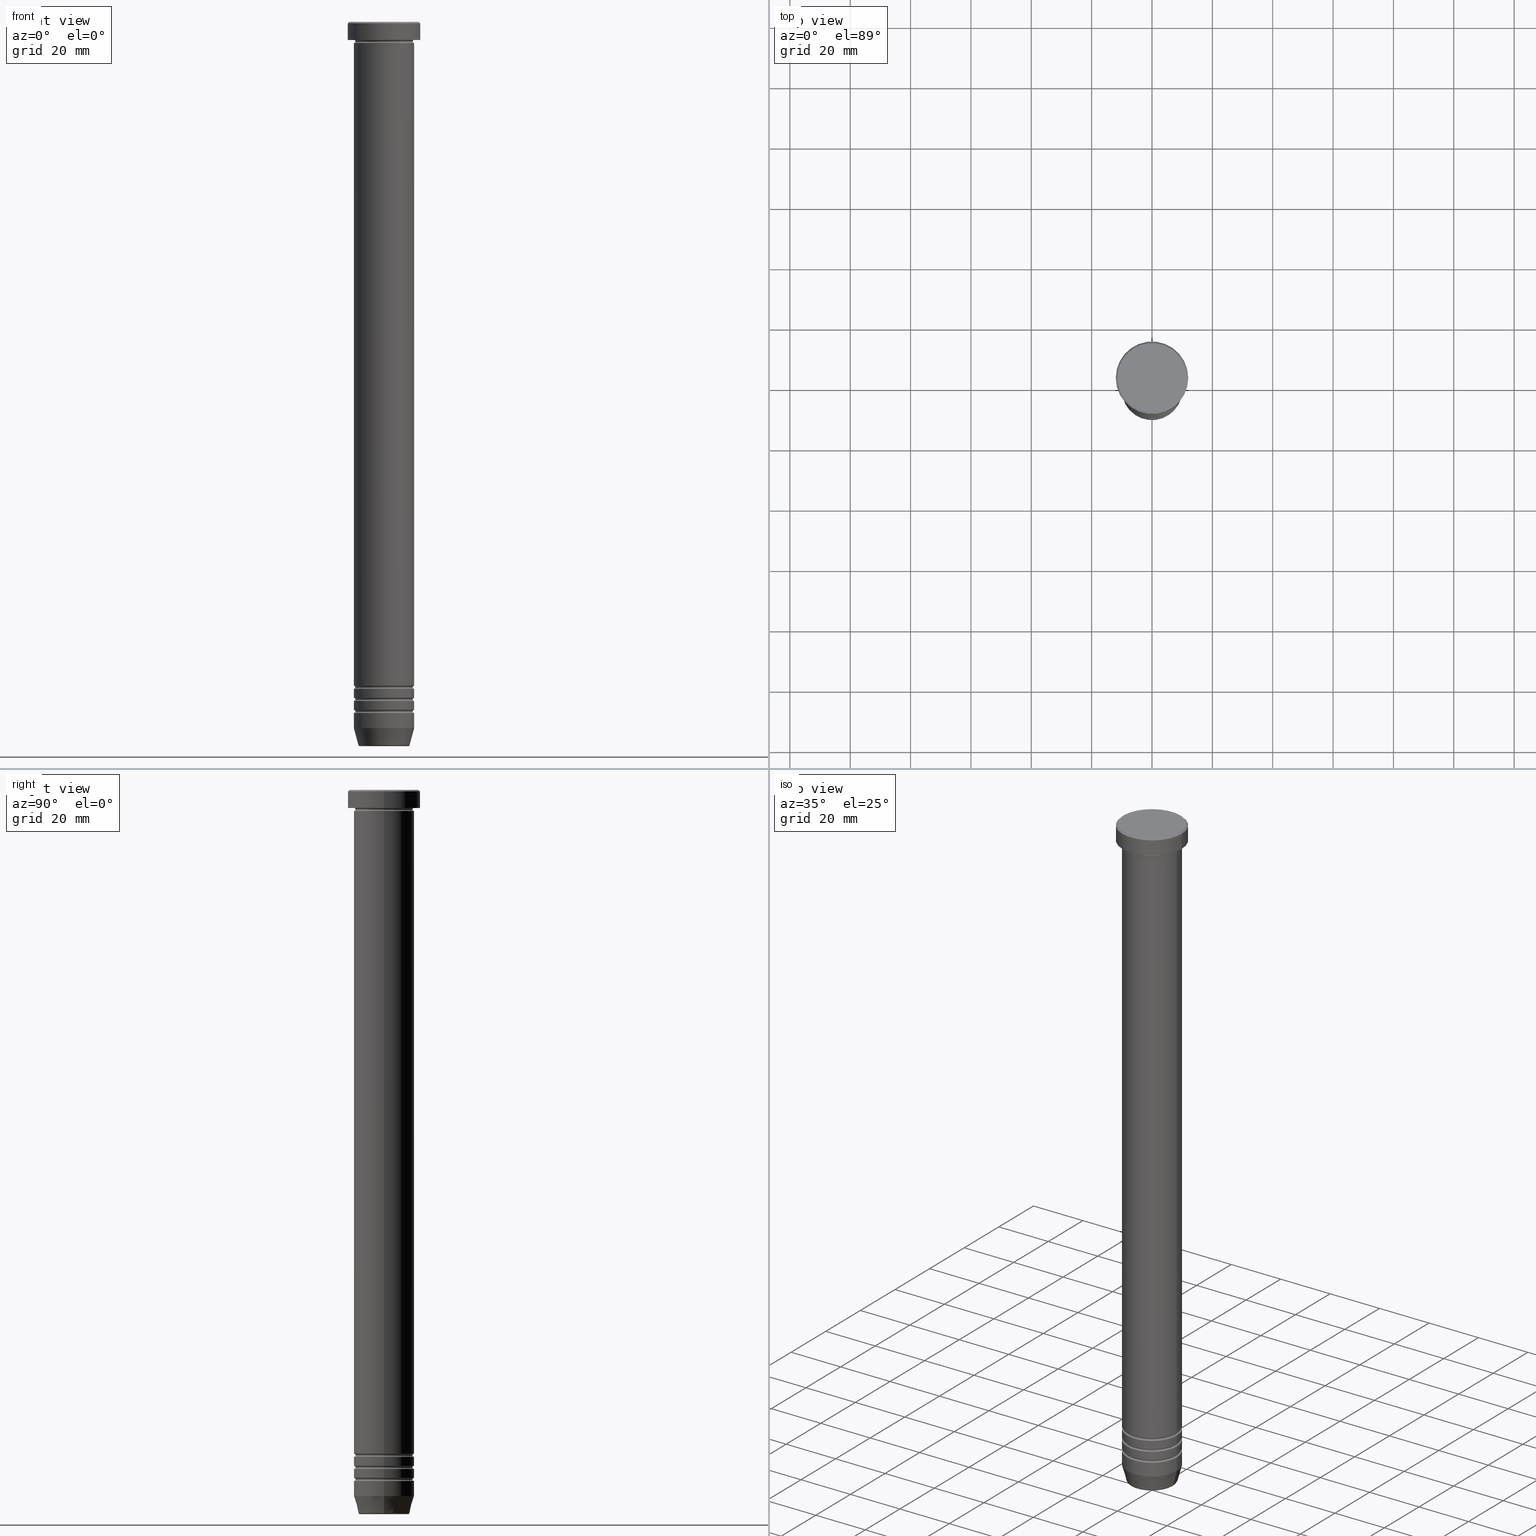
[diagram: canonical four-view strip — front | top / right | iso, engineering-drawing reading convention]
A machine part, canonical four-view strip (front | top / right | iso — engineering-drawing reading convention). The complete STEP part file that produces these views, byte-faithful:
ISO-10303-21;
HEADER;
FILE_DESCRIPTION (( 'STEP AP203' ),
    '1' );
FILE_NAME ('fb29.STEP',
    '2024-01-02T21:46:36',
    ( '' ),
    ( '' ),
    'SwSTEP 2.0',
    'SolidWorks 2019',
    '' );
FILE_SCHEMA (( 'CONFIG_CONTROL_DESIGN' ));
ENDSEC;

DATA;
#1 = COORDINATED_UNIVERSAL_TIME_OFFSET ( 1, 0, .AHEAD. ) ;
#2 = ORIENTED_EDGE ( 'NONE', *, *, #812, .T. ) ;
#3 = DIRECTION ( 'NONE',  ( 1.000000000000000000, 0.000000000000000000, 0.000000000000000000 ) ) ;
#4 = DIRECTION ( 'NONE',  ( 1.224646799147353207E-16, 1.000000000000000000, 0.000000000000000000 ) ) ;
#5 = EDGE_LOOP ( 'NONE', ( #937, #102, #133, #692 ) ) ;
#6 = APPROVAL_ROLE ( '' ) ;
#7 = CARTESIAN_POINT ( 'NONE',  ( 0.000000000000000000, 0.000000000000000000, -0.4999999999999987232 ) ) ;
#8 = CARTESIAN_POINT ( 'NONE',  ( 0.000000000000000000, 0.000000000000000000, -228.5000000000000284 ) ) ;
#9 = AXIS2_PLACEMENT_3D ( 'NONE', #501, #163, #581 ) ;
#10 = ORIENTED_EDGE ( 'NONE', *, *, #909, .T. ) ;
#11 = CIRCLE ( 'NONE', #994, 9.499999999999994671 ) ;
#12 = APPROVAL_PERSON_ORGANIZATION ( #403, #502, #6 ) ;
#13 = DIRECTION ( 'NONE',  ( -0.000000000000000000, -0.000000000000000000, 1.000000000000000000 ) ) ;
#14 = EDGE_CURVE ( 'NONE', #906, #1048, #261, .T. ) ;
#15 = DESIGN_CONTEXT ( 'detailed design', #100, 'design' ) ;
#16 = VERTEX_POINT ( 'NONE', #115 ) ;
#17 = AXIS2_PLACEMENT_3D ( 'NONE', #80, #323, #1000 ) ;
#18 = CYLINDRICAL_SURFACE ( 'NONE', #203, 9.999999999999996447 ) ;
#19 = DIRECTION ( 'NONE',  ( 0.000000000000000000, 0.000000000000000000, -1.000000000000000000 ) ) ;
#20 = FACE_OUTER_BOUND ( 'NONE', #1001, .T. ) ;
#21 = DIRECTION ( 'NONE',  ( -0.000000000000000000, -0.000000000000000000, 1.000000000000000000 ) ) ;
#22 = LINE ( 'NONE', #207, #146 ) ;
#23 = CARTESIAN_POINT ( 'NONE',  ( 0.000000000000000000, 0.000000000000000000, 0.000000000000000000 ) ) ;
#24 = TOROIDAL_SURFACE ( 'NONE', #304, 9.999999999999994671, 0.5000000000000000000 ) ;
#25 = CONICAL_SURFACE ( 'NONE', #288, 8.392304845413249836, 0.2617993877991502960 ) ;
#26 = CARTESIAN_POINT ( 'NONE',  ( 0.000000000000000000, 10.00000000000000000, -50.00000000000000000 ) ) ;
#27 = DIRECTION ( 'NONE',  ( 1.000000000000000000, 0.000000000000000000, 0.000000000000000000 ) ) ;
#28 = EDGE_LOOP ( 'NONE', ( #699, #743, #780, #925 ) ) ;
#29 = CARTESIAN_POINT ( 'NONE',  ( -10.00000000000000000, 1.224646799147353256E-15, -234.0000000000000000 ) ) ;
#30 = EDGE_CURVE ( 'NONE', #727, #1048, #67, .T. ) ;
#31 = CYLINDRICAL_SURFACE ( 'NONE', #220, 10.00000000000000000 ) ;
#32 = FACE_OUTER_BOUND ( 'NONE', #914, .T. ) ;
#33 = ORIENTED_EDGE ( 'NONE', *, *, #651, .F. ) ;
#34 = CARTESIAN_POINT ( 'NONE',  ( 9.999999999999996447, 0.000000000000000000, 0.000000000000000000 ) ) ;
#35 = ADVANCED_FACE ( 'NONE', ( #595 ), #760, .F. ) ;
#36 = DIRECTION ( 'NONE',  ( -1.224646799147353207E-16, 1.000000000000000000, 0.000000000000000000 ) ) ;
#37 = CIRCLE ( 'NONE', #660, 9.500000000000000000 ) ;
#38 = AXIS2_PLACEMENT_3D ( 'NONE', #608, #766, #94 ) ;
#39 = EDGE_LOOP ( 'NONE', ( #152, #475, #425, #228 ) ) ;
#40 = COORDINATED_UNIVERSAL_TIME_OFFSET ( 1, 0, .AHEAD. ) ;
#41 = DIRECTION ( 'NONE',  ( 1.000000000000000000, 0.000000000000000000, 0.000000000000000000 ) ) ;
#42 = DIRECTION ( 'NONE',  ( -1.224646799147353207E-16, 1.000000000000000000, 0.000000000000000000 ) ) ;
#43 = ORIENTED_EDGE ( 'NONE', *, *, #849, .T. ) ;
#44 = PERSON_AND_ORGANIZATION ( #284, #406 ) ;
#45 = MANIFOLD_SOLID_BREP ( 'Zkosen�1', #585 ) ;
#46 = DIRECTION ( 'NONE',  ( -1.000000000000000000, 0.000000000000000000, 0.000000000000000000 ) ) ;
#47 = CONICAL_SURFACE ( 'NONE', #652, 11.50000000000000888, 0.7853981633974412846 ) ;
#48 = FACE_OUTER_BOUND ( 'NONE', #907, .T. ) ;
#49 = DIRECTION ( 'NONE',  ( -1.000000000000000000, 0.000000000000000000, 0.000000000000000000 ) ) ;
#50 = CC_DESIGN_PERSON_AND_ORGANIZATION_ASSIGNMENT ( #1023, #533, ( #72 ) ) ;
#51 = CARTESIAN_POINT ( 'NONE',  ( -9.500000000000000000, 1.194030629168669469E-15, -6.499999999999999112 ) ) ;
#52 = EDGE_CURVE ( 'NONE', #175, #59, #792, .T. ) ;
#53 = AXIS2_PLACEMENT_3D ( 'NONE', #616, #462, #783 ) ;
#54 = ORIENTED_EDGE ( 'NONE', *, *, #229, .F. ) ;
#55 = FACE_OUTER_BOUND ( 'NONE', #127, .T. ) ;
#56 = TOROIDAL_SURFACE ( 'NONE', #959, 10.00000000000000000, 0.5000000000000000000 ) ;
#57 = FACE_OUTER_BOUND ( 'NONE', #210, .T. ) ;
#58 = ORIENTED_EDGE ( 'NONE', *, *, #396, .F. ) ;
#59 = VERTEX_POINT ( 'NONE', #931 ) ;
#60 = VERTEX_POINT ( 'NONE', #279 ) ;
#61 = ADVANCED_FACE ( 'NONE', ( #198 ), #951, .F. ) ;
#62 = DIRECTION ( 'NONE',  ( 1.000000000000000000, 0.000000000000000000, 0.000000000000000000 ) ) ;
#63 = ADVANCED_FACE ( 'NONE', ( #773, #32 ), #365, .T. ) ;
#64 = DIRECTION ( 'NONE',  ( -0.000000000000000000, -0.000000000000000000, 1.000000000000000000 ) ) ;
#65 = AXIS2_PLACEMENT_3D ( 'NONE', #252, #256, #333 ) ;
#66 = ORIENTED_EDGE ( 'NONE', *, *, #14, .T. ) ;
#67 = CIRCLE ( 'NONE', #601, 0.5000000000000004441 ) ;
#68 = MANIFOLD_SOLID_BREP ( 'Zaoblit5', #549 ) ;
#69 = DIRECTION ( 'NONE',  ( -1.000000000000000000, 1.224646799147353454E-16, 0.000000000000000000 ) ) ;
#70 = DIRECTION ( 'NONE',  ( -1.000000000000000000, 1.224646799147353454E-16, 0.000000000000000000 ) ) ;
#71 = ORIENTED_EDGE ( 'NONE', *, *, #110, .F. ) ;
#72 = PRODUCT_DEFINITION ( 'NEZN�M�', '', #270, #15 ) ;
#73 = DIRECTION ( 'NONE',  ( 1.000000000000000000, 0.000000000000000000, 0.000000000000000000 ) ) ;
#74 = AXIS2_PLACEMENT_3D ( 'NONE', #427, #278, #508 ) ;
#75 = AXIS2_PLACEMENT_3D ( 'NONE', #434, #21, #598 ) ;
#76 = DIRECTION ( 'NONE',  ( 1.000000000000000000, 0.000000000000000000, 0.000000000000000000 ) ) ;
#77 = ORIENTED_EDGE ( 'NONE', *, *, #638, .T. ) ;
#78 = EDGE_CURVE ( 'NONE', #16, #1048, #619, .T. ) ;
#79 = DIRECTION ( 'NONE',  ( -0.000000000000000000, -0.000000000000000000, 1.000000000000000000 ) ) ;
#80 = CARTESIAN_POINT ( 'NONE',  ( 0.000000000000000000, 0.000000000000000000, -229.0000000000000000 ) ) ;
#81 = ORIENTED_EDGE ( 'NONE', *, *, #78, .F. ) ;
#82 = ORIENTED_EDGE ( 'NONE', *, *, #85, .T. ) ;
#83 = ADVANCED_FACE ( 'NONE', ( #924 ), #299, .T. ) ;
#84 = DIRECTION ( 'NONE',  ( 0.000000000000000000, 0.000000000000000000, -1.000000000000000000 ) ) ;
#85 = EDGE_CURVE ( 'NONE', #92, #564, #277, .T. ) ;
#86 = DIRECTION ( 'NONE',  ( -1.000000000000000000, 0.000000000000000000, 0.000000000000000000 ) ) ;
#87 = ORIENTED_EDGE ( 'NONE', *, *, #478, .F. ) ;
#88 = DIRECTION ( 'NONE',  ( -0.000000000000000000, -0.000000000000000000, 1.000000000000000000 ) ) ;
#89 = DIRECTION ( 'NONE',  ( 0.000000000000000000, 0.000000000000000000, -1.000000000000000000 ) ) ;
#90 = CIRCLE ( 'NONE', #765, 10.00000000000000000 ) ;
#91 = AXIS2_PLACEMENT_3D ( 'NONE', #262, #343, #933 ) ;
#92 = VERTEX_POINT ( 'NONE', #452 ) ;
#93 = AXIS2_PLACEMENT_3D ( 'NONE', #947, #543, #1028 ) ;
#94 = DIRECTION ( 'NONE',  ( 1.000000000000000000, 0.000000000000000000, 0.000000000000000000 ) ) ;
#95 = DIRECTION ( 'NONE',  ( -0.7071067811865425767, 0.000000000000000000, -0.7071067811865525687 ) ) ;
#96 = DIRECTION ( 'NONE',  ( -0.000000000000000000, -1.000000000000000000, -0.000000000000000000 ) ) ;
#97 = AXIS2_PLACEMENT_3D ( 'NONE', #535, #96, #759 ) ;
#98 = FACE_OUTER_BOUND ( 'NONE', #443, .T. ) ;
#99 = VERTEX_POINT ( 'NONE', #371 ) ;
#100 = APPLICATION_CONTEXT ( 'configuration controlled 3d designs of mechanical parts and assemblies' ) ;
#101 = CARTESIAN_POINT ( 'NONE',  ( 0.000000000000000000, 0.000000000000000000, -0.4999999999999987232 ) ) ;
#102 = ORIENTED_EDGE ( 'NONE', *, *, #718, .F. ) ;
#103 = DIRECTION ( 'NONE',  ( -1.000000000000000000, -1.224646799147353454E-16, 0.000000000000000000 ) ) ;
#104 = DIRECTION ( 'NONE',  ( 1.000000000000000000, 0.000000000000000000, 0.000000000000000000 ) ) ;
#105 = DIRECTION ( 'NONE',  ( 1.000000000000000000, 0.000000000000000000, 0.000000000000000000 ) ) ;
#106 = CONICAL_SURFACE ( 'NONE', #851, 8.392304845413249836, 0.2617993877991502960 ) ;
#107 = EDGE_CURVE ( 'NONE', #60, #983, #670, .T. ) ;
#108 = AXIS2_PLACEMENT_3D ( 'NONE', #904, #332, #171 ) ;
#109 = ADVANCED_FACE ( 'NONE', ( #20 ), #949, .F. ) ;
#110 = EDGE_CURVE ( 'NONE', #902, #918, #1030, .T. ) ;
#111 = CARTESIAN_POINT ( 'NONE',  ( 0.000000000000000000, 0.000000000000000000, -224.5000000000000284 ) ) ;
#112 = ADVANCED_BREP_SHAPE_REPRESENTATION ( 'fb29', ( #45, #68, #93 ), #460 ) ;
#113 = DIRECTION ( 'NONE',  ( 1.000000000000000000, 0.000000000000000000, 0.000000000000000000 ) ) ;
#114 = ORIENTED_EDGE ( 'NONE', *, *, #561, .F. ) ;
#115 = CARTESIAN_POINT ( 'NONE',  ( -9.499999999999994671, 1.194030629168668681E-15, -220.5000000000000284 ) ) ;
#116 = ORIENTED_EDGE ( 'NONE', *, *, #156, .T. ) ;
#117 = CIRCLE ( 'NONE', #721, 0.5000000000000004441 ) ;
#118 = APPROVAL_STATUS ( 'not_yet_approved' ) ;
#119 = DIRECTION ( 'NONE',  ( -0.000000000000000000, -0.000000000000000000, 1.000000000000000000 ) ) ;
#120 = ORIENTED_EDGE ( 'NONE', *, *, #183, .T. ) ;
#121 = DIRECTION ( 'NONE',  ( 1.000000000000000000, 0.000000000000000000, 0.000000000000000000 ) ) ;
#122 = ORIENTED_EDGE ( 'NONE', *, *, #909, .F. ) ;
#123 = ORIENTED_EDGE ( 'NONE', *, *, #1052, .T. ) ;
#124 = CARTESIAN_POINT ( 'NONE',  ( 10.00000000000000000, 0.000000000000000000, 0.000000000000000000 ) ) ;
#125 = FACE_OUTER_BOUND ( 'NONE', #28, .T. ) ;
#126 = FACE_OUTER_BOUND ( 'NONE', #806, .T. ) ;
#127 = EDGE_LOOP ( 'NONE', ( #298, #736, #769, #1061 ) ) ;
#128 = VECTOR ( 'NONE', #179, 1000.000000000000000 ) ;
#129 = AXIS2_PLACEMENT_3D ( 'NONE', #757, #526, #276 ) ;
#130 = EDGE_LOOP ( 'NONE', ( #742, #568, #898, #658 ) ) ;
#131 = ORIENTED_EDGE ( 'NONE', *, *, #1019, .F. ) ;
#132 = DIRECTION ( 'NONE',  ( 1.000000000000000000, 0.000000000000000000, 0.000000000000000000 ) ) ;
#133 = ORIENTED_EDGE ( 'NONE', *, *, #217, .T. ) ;
#134 = DIRECTION ( 'NONE',  ( -0.000000000000000000, -0.000000000000000000, 1.000000000000000000 ) ) ;
#135 = MECHANICAL_CONTEXT ( 'NONE', #1037, 'mechanical' ) ;
#136 = CC_DESIGN_PERSON_AND_ORGANIZATION_ASSIGNMENT ( #461, #788, ( #270 ) ) ;
#137 = DIRECTION ( 'NONE',  ( -0.000000000000000000, -0.000000000000000000, 1.000000000000000000 ) ) ;
#138 = DIRECTION ( 'NONE',  ( -0.000000000000000000, -0.000000000000000000, 1.000000000000000000 ) ) ;
#139 = AXIS2_PLACEMENT_3D ( 'NONE', #529, #286, #121 ) ;
#140 = DIRECTION ( 'NONE',  ( -0.000000000000000000, -0.000000000000000000, 1.000000000000000000 ) ) ;
#141 = CYLINDRICAL_SURFACE ( 'NONE', #571, 12.00000000000000000 ) ;
#142 = DIRECTION ( 'NONE',  ( 1.000000000000000000, 0.000000000000000000, 0.000000000000000000 ) ) ;
#143 = EDGE_LOOP ( 'NONE', ( #755, #735, #476, #889 ) ) ;
#144 = ADVANCED_FACE ( 'NONE', ( #844 ), #433, .T. ) ;
#145 = CALENDAR_DATE ( 2024, 2, 1 ) ;
#146 = VECTOR ( 'NONE', #527, 1000.000000000000000 ) ;
#147 = EDGE_CURVE ( 'NONE', #700, #597, #360, .T. ) ;
#148 = DIRECTION ( 'NONE',  ( 0.000000000000000000, 0.000000000000000000, -1.000000000000000000 ) ) ;
#149 = AXIS2_PLACEMENT_3D ( 'NONE', #569, #84, #887 ) ;
#150 = CC_DESIGN_APPROVAL ( #596, ( #72 ) ) ;
#151 = DIRECTION ( 'NONE',  ( -1.000000000000000000, -1.224646799147353454E-16, 0.000000000000000000 ) ) ;
#152 = ORIENTED_EDGE ( 'NONE', *, *, #159, .F. ) ;
#153 = EDGE_LOOP ( 'NONE', ( #281, #486 ) ) ;
#154 = EDGE_LOOP ( 'NONE', ( #233, #66, #379, #315 ) ) ;
#155 = LINE ( 'NONE', #981, #1021 ) ;
#156 = EDGE_CURVE ( 'NONE', #727, #258, #737, .T. ) ;
#157 = DIRECTION ( 'NONE',  ( -1.000000000000000000, 0.000000000000000000, 0.000000000000000000 ) ) ;
#158 = AXIS2_PLACEMENT_3D ( 'NONE', #800, #134, #463 ) ;
#159 = EDGE_CURVE ( 'NONE', #971, #492, #310, .T. ) ;
#160 = ORIENTED_EDGE ( 'NONE', *, *, #362, .T. ) ;
#161 = PRODUCT_RELATED_PRODUCT_CATEGORY ( 'detail', '', ( #386 ) ) ;
#162 = DIRECTION ( 'NONE',  ( 1.000000000000000000, 0.000000000000000000, 0.000000000000000000 ) ) ;
#163 = DIRECTION ( 'NONE',  ( -0.000000000000000000, -0.000000000000000000, 1.000000000000000000 ) ) ;
#164 = VERTEX_POINT ( 'NONE', #303 ) ;
#165 = APPROVAL_STATUS ( 'not_yet_approved' ) ;
#166 = DIRECTION ( 'NONE',  ( 1.000000000000000000, 0.000000000000000000, 0.000000000000000000 ) ) ;
#167 = AXIS2_PLACEMENT_3D ( 'NONE', #455, #702, #716 ) ;
#168 = TOROIDAL_SURFACE ( 'NONE', #625, 9.999999999999994671, 0.5000000000000000000 ) ;
#169 = CARTESIAN_POINT ( 'NONE',  ( 0.000000000000000000, 0.000000000000000000, -224.5000000000000284 ) ) ;
#170 = ORIENTED_EDGE ( 'NONE', *, *, #857, .T. ) ;
#171 = DIRECTION ( 'NONE',  ( -1.000000000000000000, 0.000000000000000000, 0.000000000000000000 ) ) ;
#172 = EDGE_CURVE ( 'NONE', #802, #60, #708, .T. ) ;
#173 = FACE_OUTER_BOUND ( 'NONE', #614, .T. ) ;
#174 = AXIS2_PLACEMENT_3D ( 'NONE', #169, #89, #423 ) ;
#175 = VERTEX_POINT ( 'NONE', #624 ) ;
#176 = ADVANCED_FACE ( 'NONE', ( #469 ), #977, .T. ) ;
#177 = TOROIDAL_SURFACE ( 'NONE', #9, 8.008641351423772647, 0.5000000000000000000 ) ;
#178 = LINE ( 'NONE', #986, #420 ) ;
#179 = DIRECTION ( 'NONE',  ( -0.000000000000000000, -0.000000000000000000, 1.000000000000000000 ) ) ;
#180 = ORIENTED_EDGE ( 'NONE', *, *, #753, .F. ) ;
#181 = EDGE_CURVE ( 'NONE', #453, #99, #633, .T. ) ;
#182 = CARTESIAN_POINT ( 'NONE',  ( 11.50000000000000888, 1.438959988998140752E-15, 0.000000000000000000 ) ) ;
#183 = EDGE_CURVE ( 'NONE', #823, #459, #466, .T. ) ;
#184 = CARTESIAN_POINT ( 'NONE',  ( 9.999999999999992895, 0.000000000000000000, -228.0000000000000284 ) ) ;
#185 = CIRCLE ( 'NONE', #675, 10.00000000000000000 ) ;
#186 = AXIS2_PLACEMENT_3D ( 'NONE', #297, #620, #216 ) ;
#187 = ORIENTED_EDGE ( 'NONE', *, *, #659, .F. ) ;
#188 = ORIENTED_EDGE ( 'NONE', *, *, #872, .F. ) ;
#189 = CARTESIAN_POINT ( 'NONE',  ( 0.000000000000000000, 0.000000000000000000, 0.000000000000000000 ) ) ;
#190 = DIRECTION ( 'NONE',  ( -0.000000000000000000, -0.000000000000000000, 1.000000000000000000 ) ) ;
#191 = DIRECTION ( 'NONE',  ( -1.000000000000000000, 0.000000000000000000, 0.000000000000000000 ) ) ;
#192 = ADVANCED_FACE ( 'NONE', ( #126 ), #910, .F. ) ;
#193 = CIRCLE ( 'NONE', #17, 10.00000000000000000 ) ;
#194 = LINE ( 'NONE', #124, #676 ) ;
#195 = DIRECTION ( 'NONE',  ( 0.000000000000000000, 0.000000000000000000, -1.000000000000000000 ) ) ;
#196 = EDGE_LOOP ( 'NONE', ( #180, #82, #528, #962 ) ) ;
#197 = EDGE_CURVE ( 'NONE', #258, #727, #244, .T. ) ;
#198 = FACE_OUTER_BOUND ( 'NONE', #438, .T. ) ;
#199 = DIRECTION ( 'NONE',  ( 1.000000000000000000, 0.000000000000000000, 0.000000000000000000 ) ) ;
#200 = CARTESIAN_POINT ( 'NONE',  ( 0.000000000000000000, 0.000000000000000000, -6.499999999999999112 ) ) ;
#201 = DIRECTION ( 'NONE',  ( -1.000000000000000000, 0.000000000000000000, 0.000000000000000000 ) ) ;
#202 = AXIS2_PLACEMENT_3D ( 'NONE', #900, #19, #105 ) ;
#203 = AXIS2_PLACEMENT_3D ( 'NONE', #591, #357, #271 ) ;
#204 = EDGE_CURVE ( 'NONE', #99, #164, #464, .T. ) ;
#205 = ORIENTED_EDGE ( 'NONE', *, *, #821, .T. ) ;
#206 = DIRECTION ( 'NONE',  ( -1.000000000000000000, 0.000000000000000000, -0.000000000000000000 ) ) ;
#207 = CARTESIAN_POINT ( 'NONE',  ( -10.00000000000000000, 1.224646799147353256E-15, 0.000000000000000000 ) ) ;
#208 = ORIENTED_EDGE ( 'NONE', *, *, #630, .F. ) ;
#209 = DIRECTION ( 'NONE',  ( -0.000000000000000000, -0.000000000000000000, 1.000000000000000000 ) ) ;
#210 = EDGE_LOOP ( 'NONE', ( #311, #205 ) ) ;
#211 = TOROIDAL_SURFACE ( 'NONE', #345, 9.999999999999994671, 0.5000000000000000000 ) ;
#212 = DATE_AND_TIME ( #290, #921 ) ;
#213 = FACE_OUTER_BOUND ( 'NONE', #376, .T. ) ;
#214 = DIRECTION ( 'NONE',  ( 1.000000000000000000, 0.000000000000000000, 0.000000000000000000 ) ) ;
#215 = PERSON_AND_ORGANIZATION ( #284, #406 ) ;
#216 = DIRECTION ( 'NONE',  ( -1.000000000000000000, 0.000000000000000000, 0.000000000000000000 ) ) ;
#217 = EDGE_CURVE ( 'NONE', #470, #902, #410, .T. ) ;
#218 = PRODUCT_DEFINITION_SHAPE ( 'NONE', 'NONE',  #72 ) ;
#219 = CARTESIAN_POINT ( 'NONE',  ( 0.000000000000000000, 0.000000000000000000, 0.000000000000000000 ) ) ;
#220 = AXIS2_PLACEMENT_3D ( 'NONE', #689, #283, #609 ) ;
#221 = CIRCLE ( 'NONE', #835, 10.00000000000000000 ) ;
#222 = CARTESIAN_POINT ( 'NONE',  ( -9.999999999999994671, 1.224646799147352665E-15, -228.5000000000000284 ) ) ;
#223 = DIRECTION ( 'NONE',  ( -0.000000000000000000, -0.000000000000000000, 1.000000000000000000 ) ) ;
#224 = DIRECTION ( 'NONE',  ( 1.000000000000000000, 0.000000000000000000, 0.000000000000000000 ) ) ;
#225 = LINE ( 'NONE', #714, #559 ) ;
#226 = DIRECTION ( 'NONE',  ( -0.000000000000000000, -0.000000000000000000, 1.000000000000000000 ) ) ;
#227 = ADVANCED_FACE ( 'NONE', ( #474 ), #550, .T. ) ;
#228 = ORIENTED_EDGE ( 'NONE', *, *, #499, .F. ) ;
#229 = EDGE_CURVE ( 'NONE', #451, #988, #795, .T. ) ;
#230 = CARTESIAN_POINT ( 'NONE',  ( 9.499999999999994671, 0.000000000000000000, -220.5000000000000284 ) ) ;
#231 = PLANE ( 'NONE',  #749 ) ;
#232 = DIRECTION ( 'NONE',  ( 1.000000000000000000, 0.000000000000000000, 0.000000000000000000 ) ) ;
#233 = ORIENTED_EDGE ( 'NONE', *, *, #493, .T. ) ;
#234 = EDGE_CURVE ( 'NONE', #971, #560, #546, .T. ) ;
#235 = DATE_AND_TIME ( #145, #574 ) ;
#236 = AXIS2_PLACEMENT_3D ( 'NONE', #398, #566, #162 ) ;
#237 = DIRECTION ( 'NONE',  ( -1.000000000000000000, 0.000000000000000000, 0.000000000000000000 ) ) ;
#238 = CC_DESIGN_PERSON_AND_ORGANIZATION_ASSIGNMENT ( #241, #335, ( #854 ) ) ;
#239 = DIRECTION ( 'NONE',  ( 0.2588190451025215166, 0.000000000000000000, 0.9659258262890679791 ) ) ;
#240 = ORIENTED_EDGE ( 'NONE', *, *, #234, .T. ) ;
#241 = PERSON_AND_ORGANIZATION ( #284, #406 ) ;
#242 = ORIENTED_EDGE ( 'NONE', *, *, #30, .T. ) ;
#243 = CARTESIAN_POINT ( 'NONE',  ( -8.008641351423772647, 9.807756996540256432E-16, -239.5000000000000568 ) ) ;
#244 = CIRCLE ( 'NONE', #412, 9.999999999999992895 ) ;
#245 = ORIENTED_EDGE ( 'NONE', *, *, #183, .F. ) ;
#246 = PLANE ( 'NONE',  #472 ) ;
#247 = FACE_OUTER_BOUND ( 'NONE', #5, .T. ) ;
#248 = VERTEX_POINT ( 'NONE', #51 ) ;
#249 = CARTESIAN_POINT ( 'NONE',  ( 0.000000000000000000, 0.000000000000000000, 0.000000000000000000 ) ) ;
#250 = CIRCLE ( 'NONE', #1038, 0.5000000000000004441 ) ;
#251 = CIRCLE ( 'NONE', #920, 0.5000000000000004441 ) ;
#252 = CARTESIAN_POINT ( 'NONE',  ( 0.000000000000000000, 0.000000000000000000, 0.000000000000000000 ) ) ;
#253 = ADVANCED_FACE ( 'NONE', ( #57 ), #1032, .F. ) ;
#254 = ORIENTED_EDGE ( 'NONE', *, *, #422, .F. ) ;
#255 = DIRECTION ( 'NONE',  ( -1.000000000000000000, 1.224646799147353454E-16, 0.000000000000000000 ) ) ;
#256 = DIRECTION ( 'NONE',  ( -0.000000000000000000, -0.000000000000000000, 1.000000000000000000 ) ) ;
#257 = CIRCLE ( 'NONE', #861, 10.00000000000000000 ) ;
#258 = VERTEX_POINT ( 'NONE', #712 ) ;
#259 = ADVANCED_FACE ( 'NONE', ( #1046 ), #300, .T. ) ;
#260 = ORIENTED_EDGE ( 'NONE', *, *, #293, .T. ) ;
#261 = CIRCLE ( 'NONE', #347, 0.5000000000000004441 ) ;
#262 = CARTESIAN_POINT ( 'NONE',  ( 9.999999999999994671, 1.224646799147352665E-15, -228.5000000000000284 ) ) ;
#263 = DIRECTION ( 'NONE',  ( -0.000000000000000000, -0.000000000000000000, 1.000000000000000000 ) ) ;
#264 = ORIENTED_EDGE ( 'NONE', *, *, #156, .F. ) ;
#265 = ORIENTED_EDGE ( 'NONE', *, *, #606, .T. ) ;
#266 = PLANE ( 'NONE',  #661 ) ;
#267 = CARTESIAN_POINT ( 'NONE',  ( -10.00000000000000000, 1.224646799147353256E-15, -6.499999999999999112 ) ) ;
#268 = CIRCLE ( 'NONE', #202, 8.008641351423772647 ) ;
#269 = ORIENTED_EDGE ( 'NONE', *, *, #78, .T. ) ;
#270 = PRODUCT_DEFINITION_FORMATION_WITH_SPECIFIED_SOURCE ( 'LIBOVOLN�', '', #386, .NOT_KNOWN. ) ;
#271 = DIRECTION ( 'NONE',  ( 1.000000000000000000, 0.000000000000000000, 0.000000000000000000 ) ) ;
#272 = CARTESIAN_POINT ( 'NONE',  ( -9.999999999999996447, 1.224646799147352862E-15, 0.000000000000000000 ) ) ;
#273 = ORIENTED_EDGE ( 'NONE', *, *, #651, .T. ) ;
#274 = ORIENTED_EDGE ( 'NONE', *, *, #786, .T. ) ;
#275 = AXIS2_PLACEMENT_3D ( 'NONE', #723, #382, #395 ) ;
#276 = DIRECTION ( 'NONE',  ( 0.000000000000000000, 0.000000000000000000, -1.000000000000000000 ) ) ;
#277 = CIRCLE ( 'NONE', #740, 9.999999999999998224 ) ;
#278 = DIRECTION ( 'NONE',  ( -0.000000000000000000, -0.000000000000000000, 1.000000000000000000 ) ) ;
#279 = CARTESIAN_POINT ( 'NONE',  ( -10.00000000000000178, 1.224646799147353454E-15, -225.0000000000000284 ) ) ;
#280 = ADVANCED_FACE ( 'NONE', ( #48 ), #47, .T. ) ;
#281 = ORIENTED_EDGE ( 'NONE', *, *, #717, .T. ) ;
#282 = DIRECTION ( 'NONE',  ( -1.000000000000000000, -1.224646799147353454E-16, 0.000000000000000000 ) ) ;
#283 = DIRECTION ( 'NONE',  ( -0.000000000000000000, -0.000000000000000000, 1.000000000000000000 ) ) ;
#284 = PERSON ( 'NEUR�EN�', 'NEUR�EN�', 'NEUR�EN�', ('NEUR�EN�'), ('NEUR�EN�'), ('NEUR�EN�') ) ;
#285 = AXIS2_PLACEMENT_3D ( 'NONE', #634, #473, #381 ) ;
#286 = DIRECTION ( 'NONE',  ( -0.000000000000000000, -0.000000000000000000, 1.000000000000000000 ) ) ;
#287 = AXIS2_PLACEMENT_3D ( 'NONE', #511, #432, #354 ) ;
#288 = AXIS2_PLACEMENT_3D ( 'NONE', #663, #1055, #3 ) ;
#289 = ORIENTED_EDGE ( 'NONE', *, *, #796, .T. ) ;
#290 = CALENDAR_DATE ( 2024, 2, 1 ) ;
#291 = DIRECTION ( 'NONE',  ( 1.000000000000000000, 0.000000000000000000, 0.000000000000000000 ) ) ;
#292 = ORIENTED_EDGE ( 'NONE', *, *, #414, .F. ) ;
#293 = EDGE_CURVE ( 'NONE', #453, #649, #193, .T. ) ;
#294 = EDGE_CURVE ( 'NONE', #649, #453, #791, .T. ) ;
#295 = AXIS2_PLACEMENT_3D ( 'NONE', #351, #1004, #513 ) ;
#296 = APPROVAL_DATE_TIME ( #701, #579 ) ;
#297 = CARTESIAN_POINT ( 'NONE',  ( 0.000000000000000000, 0.000000000000000000, -239.6294095225513274 ) ) ;
#298 = ORIENTED_EDGE ( 'NONE', *, *, #416, .F. ) ;
#299 = TOROIDAL_SURFACE ( 'NONE', #139, 8.008641351423772647, 0.5000000000000000000 ) ;
#300 = CYLINDRICAL_SURFACE ( 'NONE', #445, 9.999999999999996447 ) ;
#301 = ORIENTED_EDGE ( 'NONE', *, *, #338, .T. ) ;
#302 = DIRECTION ( 'NONE',  ( 0.000000000000000000, -0.000000000000000000, 1.000000000000000000 ) ) ;
#303 = CARTESIAN_POINT ( 'NONE',  ( 9.499999999999994671, 0.000000000000000000, -228.5000000000000284 ) ) ;
#304 = AXIS2_PLACEMENT_3D ( 'NONE', #377, #538, #1045 ) ;
#305 = CIRCLE ( 'NONE', #339, 10.00000000000000000 ) ;
#306 = DIRECTION ( 'NONE',  ( -0.000000000000000000, -0.000000000000000000, 1.000000000000000000 ) ) ;
#307 = ORIENTED_EDGE ( 'NONE', *, *, #30, .F. ) ;
#308 = ADVANCED_FACE ( 'NONE', ( #728 ), #808, .F. ) ;
#309 = DIRECTION ( 'NONE',  ( 0.000000000000000000, -1.000000000000000000, 0.000000000000000000 ) ) ;
#310 = LINE ( 'NONE', #1051, #984 ) ;
#311 = ORIENTED_EDGE ( 'NONE', *, *, #831, .T. ) ;
#312 = AXIS2_PLACEMENT_3D ( 'NONE', #388, #392, #719 ) ;
#313 = DIRECTION ( 'NONE',  ( -0.000000000000000000, -0.000000000000000000, 1.000000000000000000 ) ) ;
#314 = CARTESIAN_POINT ( 'NONE',  ( 0.000000000000000000, 0.000000000000000000, -228.5000000000000284 ) ) ;
#315 = ORIENTED_EDGE ( 'NONE', *, *, #725, .F. ) ;
#316 = CARTESIAN_POINT ( 'NONE',  ( -9.999999999999996447, 1.224646799147352862E-15, 0.000000000000000000 ) ) ;
#317 = ORIENTED_EDGE ( 'NONE', *, *, #204, .T. ) ;
#318 = VECTOR ( 'NONE', #599, 1000.000000000000000 ) ;
#319 = CIRCLE ( 'NONE', #903, 10.00000000000000000 ) ;
#320 = DIRECTION ( 'NONE',  ( 0.000000000000000000, 0.000000000000000000, -1.000000000000000000 ) ) ;
#321 = LOCAL_TIME ( 22, 46, 36.00000000000000000, #1 ) ;
#322 = EDGE_LOOP ( 'NONE', ( #1022, #809, #674, #317 ) ) ;
#323 = DIRECTION ( 'NONE',  ( -0.000000000000000000, -0.000000000000000000, 1.000000000000000000 ) ) ;
#324 = ORIENTED_EDGE ( 'NONE', *, *, #990, .F. ) ;
#325 = PERSON_AND_ORGANIZATION_ROLE ( 'design_supplier' ) ;
#326 = CARTESIAN_POINT ( 'NONE',  ( -9.999999999999992895, 1.224646799147352665E-15, -228.0000000000000284 ) ) ;
#327 = CARTESIAN_POINT ( 'NONE',  ( 0.000000000000000000, 0.000000000000000000, 0.000000000000000000 ) ) ;
#328 = AXIS2_PLACEMENT_3D ( 'NONE', #822, #411, #667 ) ;
#329 = ORIENTED_EDGE ( 'NONE', *, *, #204, .F. ) ;
#330 = AXIS2_PLACEMENT_3D ( 'NONE', #856, #862, #201 ) ;
#331 = DATE_TIME_ROLE ( 'classification_date' ) ;
#332 = DIRECTION ( 'NONE',  ( 0.000000000000000000, 0.000000000000000000, -1.000000000000000000 ) ) ;
#333 = DIRECTION ( 'NONE',  ( 1.000000000000000000, 0.000000000000000000, 0.000000000000000000 ) ) ;
#334 = ORIENTED_EDGE ( 'NONE', *, *, #172, .F. ) ;
#335 = PERSON_AND_ORGANIZATION_ROLE ( 'classification_officer' ) ;
#336 = DIRECTION ( 'NONE',  ( 1.000000000000000000, 0.000000000000000000, 0.000000000000000000 ) ) ;
#337 = AXIS2_PLACEMENT_3D ( 'NONE', #350, #594, #772 ) ;
#338 = EDGE_CURVE ( 'NONE', #988, #459, #927, .T. ) ;
#339 = AXIS2_PLACEMENT_3D ( 'NONE', #484, #79, #409 ) ;
#340 = ADVANCED_FACE ( 'NONE', ( #173 ), #580, .F. ) ;
#341 = ORIENTED_EDGE ( 'NONE', *, *, #448, .F. ) ;
#342 = ORIENTED_EDGE ( 'NONE', *, *, #796, .F. ) ;
#343 = DIRECTION ( 'NONE',  ( -1.224646799147353207E-16, 1.000000000000000000, 0.000000000000000000 ) ) ;
#344 = FACE_OUTER_BOUND ( 'NONE', #391, .T. ) ;
#345 = AXIS2_PLACEMENT_3D ( 'NONE', #895, #827, #399 ) ;
#346 = ORIENTED_EDGE ( 'NONE', *, *, #593, .F. ) ;
#347 = AXIS2_PLACEMENT_3D ( 'NONE', #605, #36, #103 ) ;
#348 = FACE_OUTER_BOUND ( 'NONE', #842, .T. ) ;
#349 = EDGE_CURVE ( 'NONE', #946, #823, #117, .T. ) ;
#350 = CARTESIAN_POINT ( 'NONE',  ( 0.000000000000000000, 0.000000000000000000, -6.000000000000000000 ) ) ;
#351 = CARTESIAN_POINT ( 'NONE',  ( 0.000000000000000000, 0.000000000000000000, -6.999999999999999112 ) ) ;
#352 = ORIENTED_EDGE ( 'NONE', *, *, #450, .T. ) ;
#353 = DIRECTION ( 'NONE',  ( 0.000000000000000000, 0.000000000000000000, -1.000000000000000000 ) ) ;
#354 = DIRECTION ( 'NONE',  ( 1.000000000000000000, 0.000000000000000000, 0.000000000000000000 ) ) ;
#355 = CIRCLE ( 'NONE', #731, 10.00000000000000000 ) ;
#356 = DIRECTION ( 'NONE',  ( -0.000000000000000000, -0.000000000000000000, 1.000000000000000000 ) ) ;
#357 = DIRECTION ( 'NONE',  ( -0.000000000000000000, -0.000000000000000000, 1.000000000000000000 ) ) ;
#358 = DIRECTION ( 'NONE',  ( 1.224646799147353207E-16, 1.000000000000000000, 0.000000000000000000 ) ) ;
#359 = ORIENTED_EDGE ( 'NONE', *, *, #416, .T. ) ;
#360 = CIRCLE ( 'NONE', #618, 0.5000000000000004441 ) ;
#361 = DIRECTION ( 'NONE',  ( -0.000000000000000000, -0.000000000000000000, 1.000000000000000000 ) ) ;
#362 = EDGE_CURVE ( 'NONE', #60, #700, #257, .T. ) ;
#363 = CARTESIAN_POINT ( 'NONE',  ( 12.00000000000000000, 0.000000000000000000, 0.000000000000000000 ) ) ;
#364 = ORIENTED_EDGE ( 'NONE', *, *, #843, .F. ) ;
#365 = PLANE ( 'NONE',  #930 ) ;
#366 = VERTEX_POINT ( 'NONE', #816 ) ;
#367 = APPLICATION_PROTOCOL_DEFINITION ( 'international standard', 'config_control_design', 1994, #100 ) ;
#368 = CARTESIAN_POINT ( 'NONE',  ( -11.50000000000000888, 0.000000000000000000, 0.000000000000000000 ) ) ;
#369 = ADVANCED_FACE ( 'NONE', ( #344 ), #888, .T. ) ;
#370 = AXIS2_PLACEMENT_3D ( 'NONE', #101, #195, #1014 ) ;
#371 = CARTESIAN_POINT ( 'NONE',  ( -9.499999999999994671, 1.194030629168668681E-15, -228.5000000000000284 ) ) ;
#372 = CIRCLE ( 'NONE', #149, 9.499999999999994671 ) ;
#373 = ADVANCED_FACE ( 'NONE', ( #991 ), #530, .F. ) ;
#374 = ORIENTED_EDGE ( 'NONE', *, *, #414, .T. ) ;
#375 = CALENDAR_DATE ( 2024, 2, 1 ) ;
#376 = EDGE_LOOP ( 'NONE', ( #885, #833, #208, #245 ) ) ;
#377 = CARTESIAN_POINT ( 'NONE',  ( 0.000000000000000000, 0.000000000000000000, -228.5000000000000284 ) ) ;
#378 = CARTESIAN_POINT ( 'NONE',  ( 8.392304845413249836, 0.000000000000000000, -240.0000000000000568 ) ) ;
#379 = ORIENTED_EDGE ( 'NONE', *, *, #872, .T. ) ;
#380 = DATE_AND_TIME ( #876, #424 ) ;
#381 = DIRECTION ( 'NONE',  ( 1.000000000000000000, 0.000000000000000000, 0.000000000000000000 ) ) ;
#382 = DIRECTION ( 'NONE',  ( -0.000000000000000000, -0.000000000000000000, 1.000000000000000000 ) ) ;
#383 = ADVANCED_FACE ( 'NONE', ( #485 ), #211, .F. ) ;
#384 = PERSON_AND_ORGANIZATION ( #284, #406 ) ;
#385 = CARTESIAN_POINT ( 'NONE',  ( 10.00000000000000000, 0.000000000000000000, -229.0000000000000000 ) ) ;
#386 = PRODUCT ( 'fb29', 'fb29', '', ( #135 ) ) ;
#387 = EDGE_LOOP ( 'NONE', ( #678, #525, #400, #324 ) ) ;
#388 = CARTESIAN_POINT ( 'NONE',  ( 0.000000000000000000, 0.000000000000000000, -50.00000000000000000 ) ) ;
#389 = CONICAL_SURFACE ( 'NONE', #992, 11.50000000000000888, 0.7853981633974412846 ) ;
#390 = CARTESIAN_POINT ( 'NONE',  ( 0.000000000000000000, 0.000000000000000000, 0.000000000000000000 ) ) ;
#391 = EDGE_LOOP ( 'NONE', ( #334, #10, #1043, #408 ) ) ;
#392 = DIRECTION ( 'NONE',  ( 0.000000000000000000, 0.000000000000000000, -1.000000000000000000 ) ) ;
#393 = ORIENTED_EDGE ( 'NONE', *, *, #753, .T. ) ;
#394 = FACE_OUTER_BOUND ( 'NONE', #828, .T. ) ;
#395 = DIRECTION ( 'NONE',  ( 1.000000000000000000, 0.000000000000000000, 0.000000000000000000 ) ) ;
#396 = EDGE_CURVE ( 'NONE', #258, #16, #684, .T. ) ;
#397 = ORIENTED_EDGE ( 'NONE', *, *, #338, .F. ) ;
#398 = CARTESIAN_POINT ( 'NONE',  ( 0.000000000000000000, 0.000000000000000000, -220.5000000000000284 ) ) ;
#399 = DIRECTION ( 'NONE',  ( 1.000000000000000000, 0.000000000000000000, 0.000000000000000000 ) ) ;
#400 = ORIENTED_EDGE ( 'NONE', *, *, #717, .F. ) ;
#401 = ADVANCED_FACE ( 'NONE', ( #657 ), #177, .T. ) ;
#402 = VECTOR ( 'NONE', #468, 1000.000000000000000 ) ;
#403 = PERSON_AND_ORGANIZATION ( #284, #406 ) ;
#404 = AXIS2_PLACEMENT_3D ( 'NONE', #495, #911, #255 ) ;
#405 = DIRECTION ( 'NONE',  ( -0.000000000000000000, -0.000000000000000000, 1.000000000000000000 ) ) ;
#406 = ORGANIZATION ( 'NEUR�EN�', 'NEUR�EN�', '' ) ;
#407 = LINE ( 'NONE', #912, #128 ) ;
#408 = ORIENTED_EDGE ( 'NONE', *, *, #362, .F. ) ;
#409 = DIRECTION ( 'NONE',  ( 1.000000000000000000, 0.000000000000000000, 0.000000000000000000 ) ) ;
#410 = CIRCLE ( 'NONE', #965, 0.5000000000000004441 ) ;
#411 = DIRECTION ( 'NONE',  ( -0.000000000000000000, -0.000000000000000000, 1.000000000000000000 ) ) ;
#412 = AXIS2_PLACEMENT_3D ( 'NONE', #554, #226, #961 ) ;
#413 = EDGE_LOOP ( 'NONE', ( #54, #979, #120, #397 ) ) ;
#414 = EDGE_CURVE ( 'NONE', #662, #503, #610, .T. ) ;
#415 = CARTESIAN_POINT ( 'NONE',  ( 0.000000000000000000, 0.000000000000000000, -224.5000000000000284 ) ) ;
#416 = EDGE_CURVE ( 'NONE', #1033, #1049, #407, .T. ) ;
#417 = CARTESIAN_POINT ( 'NONE',  ( 0.000000000000000000, 0.000000000000000000, -220.5000000000000284 ) ) ;
#418 = ORIENTED_EDGE ( 'NONE', *, *, #494, .F. ) ;
#419 = CARTESIAN_POINT ( 'NONE',  ( 8.008641351423772647, 0.000000000000000000, -240.0000000000000568 ) ) ;
#420 = VECTOR ( 'NONE', #646, 1000.000000000000000 ) ;
#421 = AXIS2_PLACEMENT_3D ( 'NONE', #243, #810, #69 ) ;
#422 = EDGE_CURVE ( 'NONE', #577, #164, #834, .T. ) ;
#423 = DIRECTION ( 'NONE',  ( -1.000000000000000000, 0.000000000000000000, 0.000000000000000000 ) ) ;
#424 = LOCAL_TIME ( 22, 46, 36.00000000000000000, #615 ) ;
#425 = ORIENTED_EDGE ( 'NONE', *, *, #593, .T. ) ;
#426 = DIRECTION ( 'NONE',  ( 1.000000000000000000, 0.000000000000000000, 0.000000000000000000 ) ) ;
#427 = CARTESIAN_POINT ( 'NONE',  ( 0.000000000000000000, 0.000000000000000000, -6.499999999999999112 ) ) ;
#428 = AXIS2_PLACEMENT_3D ( 'NONE', #703, #631, #224 ) ;
#429 = ADVANCED_FACE ( 'NONE', ( #247 ), #642, .F. ) ;
#430 = DIRECTION ( 'NONE',  ( 0.000000000000000000, 0.000000000000000000, -1.000000000000000000 ) ) ;
#431 = CARTESIAN_POINT ( 'NONE',  ( -10.00000000000000000, 1.224646799147353256E-15, -6.999999999999999112 ) ) ;
#432 = DIRECTION ( 'NONE',  ( -0.000000000000000000, -0.000000000000000000, 1.000000000000000000 ) ) ;
#433 = CYLINDRICAL_SURFACE ( 'NONE', #890, 9.999999999999998224 ) ;
#434 = CARTESIAN_POINT ( 'NONE',  ( 0.000000000000000000, 0.000000000000000000, -6.000000000000000000 ) ) ;
#435 = CC_DESIGN_DATE_AND_TIME_ASSIGNMENT ( #235, #331, ( #854 ) ) ;
#436 = DIRECTION ( 'NONE',  ( -1.000000000000000000, 1.224646799147353454E-16, 0.000000000000000000 ) ) ;
#437 = VECTOR ( 'NONE', #95, 999.9999999999998863 ) ;
#438 = EDGE_LOOP ( 'NONE', ( #516, #913, #274, #894 ) ) ;
#439 = TOROIDAL_SURFACE ( 'NONE', #697, 9.999999999999994671, 0.5000000000000000000 ) ;
#440 = DIRECTION ( 'NONE',  ( 0.000000000000000000, 0.000000000000000000, -1.000000000000000000 ) ) ;
#441 = CARTESIAN_POINT ( 'NONE',  ( 10.00000000000000000, 0.000000000000000000, -6.999999999999999112 ) ) ;
#442 = DIRECTION ( 'NONE',  ( 0.000000000000000000, 0.000000000000000000, -1.000000000000000000 ) ) ;
#443 = EDGE_LOOP ( 'NONE', ( #187, #292 ) ) ;
#444 = DIRECTION ( 'NONE',  ( 1.000000000000000000, 0.000000000000000000, 0.000000000000000000 ) ) ;
#445 = AXIS2_PLACEMENT_3D ( 'NONE', #1042, #970, #232 ) ;
#446 = EDGE_LOOP ( 'NONE', ( #352, #632 ) ) ;
#447 = LINE ( 'NONE', #694, #558 ) ;
#448 = EDGE_CURVE ( 'NONE', #996, #946, #268, .T. ) ;
#449 = DIRECTION ( 'NONE',  ( 1.000000000000000000, 0.000000000000000000, 0.000000000000000000 ) ) ;
#450 = EDGE_CURVE ( 'NONE', #946, #996, #555, .T. ) ;
#451 = VERTEX_POINT ( 'NONE', #758 ) ;
#452 = CARTESIAN_POINT ( 'NONE',  ( -9.999999999999998224, 1.224646799147353059E-15, -224.0000000000000000 ) ) ;
#453 = VERTEX_POINT ( 'NONE', #860 ) ;
#454 = APPROVAL_ROLE ( '' ) ;
#455 = CARTESIAN_POINT ( 'NONE',  ( 0.000000000000000000, 0.000000000000000000, 0.000000000000000000 ) ) ;
#456 = CIRCLE ( 'NONE', #285, 9.499999999999994671 ) ;
#457 = DIRECTION ( 'NONE',  ( 0.000000000000000000, 0.000000000000000000, -1.000000000000000000 ) ) ;
#458 = CIRCLE ( 'NONE', #129, 0.5000000000000004441 ) ;
#459 = VERTEX_POINT ( 'NONE', #672 ) ;
#460 =( GEOMETRIC_REPRESENTATION_CONTEXT ( 3 ) GLOBAL_UNCERTAINTY_ASSIGNED_CONTEXT ( ( #747 ) ) GLOBAL_UNIT_ASSIGNED_CONTEXT ( ( #537, #775, #1034 ) ) REPRESENTATION_CONTEXT ( 'NONE', 'WORKASPACE' ) );
#461 = PERSON_AND_ORGANIZATION ( #284, #406 ) ;
#462 = DIRECTION ( 'NONE',  ( -0.000000000000000000, -0.000000000000000000, 1.000000000000000000 ) ) ;
#463 = DIRECTION ( 'NONE',  ( 1.000000000000000000, 0.000000000000000000, 0.000000000000000000 ) ) ;
#464 = CIRCLE ( 'NONE', #1013, 9.499999999999994671 ) ;
#465 = DIRECTION ( 'NONE',  ( 0.000000000000000000, 0.000000000000000000, -1.000000000000000000 ) ) ;
#466 = LINE ( 'NONE', #378, #875 ) ;
#467 = DIRECTION ( 'NONE',  ( -0.000000000000000000, -0.000000000000000000, 1.000000000000000000 ) ) ;
#468 = DIRECTION ( 'NONE',  ( -0.000000000000000000, -0.000000000000000000, 1.000000000000000000 ) ) ;
#469 = FACE_OUTER_BOUND ( 'NONE', #858, .T. ) ;
#470 = VERTEX_POINT ( 'NONE', #855 ) ;
#471 = CIRCLE ( 'NONE', #782, 9.999999999999992895 ) ;
#472 = AXIS2_PLACEMENT_3D ( 'NONE', #249, #830, #573 ) ;
#473 = DIRECTION ( 'NONE',  ( 0.000000000000000000, 0.000000000000000000, -1.000000000000000000 ) ) ;
#474 = FACE_OUTER_BOUND ( 'NONE', #771, .T. ) ;
#475 = ORIENTED_EDGE ( 'NONE', *, *, #638, .F. ) ;
#476 = ORIENTED_EDGE ( 'NONE', *, *, #636, .T. ) ;
#477 = AXIS2_PLACEMENT_3D ( 'NONE', #673, #680, #191 ) ;
#478 = EDGE_CURVE ( 'NONE', #577, #802, #471, .T. ) ;
#479 = DIRECTION ( 'NONE',  ( 1.000000000000000000, 0.000000000000000000, 0.000000000000000000 ) ) ;
#480 = EDGE_CURVE ( 'NONE', #248, #918, #799, .T. ) ;
#481 = DIRECTION ( 'NONE',  ( 0.000000000000000000, 0.000000000000000000, -1.000000000000000000 ) ) ;
#482 = AXIS2_PLACEMENT_3D ( 'NONE', #685, #521, #612 ) ;
#483 = ORIENTED_EDGE ( 'NONE', *, *, #857, .F. ) ;
#484 = CARTESIAN_POINT ( 'NONE',  ( 0.000000000000000000, 0.000000000000000000, -6.999999999999999112 ) ) ;
#485 = FACE_OUTER_BOUND ( 'NONE', #686, .T. ) ;
#486 = ORIENTED_EDGE ( 'NONE', *, *, #52, .T. ) ;
#487 = AXIS2_PLACEMENT_3D ( 'NONE', #629, #223, #553 ) ;
#488 = SHAPE_DEFINITION_REPRESENTATION ( #218, #112 ) ;
#489 = EDGE_CURVE ( 'NONE', #1033, #974, #936, .T. ) ;
#490 = FACE_OUTER_BOUND ( 'NONE', #413, .T. ) ;
#491 = DIRECTION ( 'NONE',  ( -0.000000000000000000, -0.000000000000000000, 1.000000000000000000 ) ) ;
#492 = VERTEX_POINT ( 'NONE', #768 ) ;
#493 = EDGE_CURVE ( 'NONE', #366, #906, #90, .T. ) ;
#494 = EDGE_CURVE ( 'NONE', #974, #492, #515, .T. ) ;
#495 = CARTESIAN_POINT ( 'NONE',  ( -9.999999999999994671, 1.224646799147352665E-15, -224.5000000000000284 ) ) ;
#496 = VECTOR ( 'NONE', #641, 1000.000000000000000 ) ;
#497 = DIRECTION ( 'NONE',  ( -0.000000000000000000, -0.000000000000000000, 1.000000000000000000 ) ) ;
#498 = ORIENTED_EDGE ( 'NONE', *, *, #197, .T. ) ;
#499 = EDGE_CURVE ( 'NONE', #492, #1049, #870, .T. ) ;
#500 = FACE_OUTER_BOUND ( 'NONE', #655, .T. ) ;
#501 = CARTESIAN_POINT ( 'NONE',  ( 0.000000000000000000, 0.000000000000000000, -239.5000000000000568 ) ) ;
#502 = APPROVAL ( #165, 'NEUR�EN�' ) ;
#503 = VERTEX_POINT ( 'NONE', #603 ) ;
#504 = CIRCLE ( 'NONE', #287, 9.999999999999998224 ) ;
#505 = ORIENTED_EDGE ( 'NONE', *, *, #489, .F. ) ;
#506 = DIRECTION ( 'NONE',  ( -0.000000000000000000, -0.000000000000000000, 1.000000000000000000 ) ) ;
#507 = CIRCLE ( 'NONE', #882, 9.999999999999992895 ) ;
#508 = DIRECTION ( 'NONE',  ( 1.000000000000000000, 0.000000000000000000, 0.000000000000000000 ) ) ;
#509 = ORIENTED_EDGE ( 'NONE', *, *, #159, .T. ) ;
#510 = DIRECTION ( 'NONE',  ( 1.000000000000000000, 0.000000000000000000, 0.000000000000000000 ) ) ;
#511 = CARTESIAN_POINT ( 'NONE',  ( 0.000000000000000000, 0.000000000000000000, -224.0000000000000000 ) ) ;
#512 = AXIS2_PLACEMENT_3D ( 'NONE', #219, #138, #805 ) ;
#513 = DIRECTION ( 'NONE',  ( 1.000000000000000000, 0.000000000000000000, 0.000000000000000000 ) ) ;
#514 = EDGE_CURVE ( 'NONE', #906, #366, #185, .T. ) ;
#515 = LINE ( 'NONE', #363, #695 ) ;
#516 = ORIENTED_EDGE ( 'NONE', *, *, #523, .F. ) ;
#517 = FACE_OUTER_BOUND ( 'NONE', #777, .T. ) ;
#518 = CARTESIAN_POINT ( 'NONE',  ( 0.000000000000000000, 0.000000000000000000, -221.0000000000000284 ) ) ;
#519 = CIRCLE ( 'NONE', #53, 8.491604264568294980 ) ;
#520 = TOROIDAL_SURFACE ( 'NONE', #1057, 9.999999999999994671, 0.5000000000000000000 ) ;
#521 = DIRECTION ( 'NONE',  ( -0.000000000000000000, -0.000000000000000000, 1.000000000000000000 ) ) ;
#522 = CC_DESIGN_SECURITY_CLASSIFICATION ( #854, ( #270 ) ) ;
#523 = EDGE_CURVE ( 'NONE', #248, #470, #37, .T. ) ;
#524 = EDGE_CURVE ( 'NONE', #577, #700, #762, .T. ) ;
#525 = ORIENTED_EDGE ( 'NONE', *, *, #908, .T. ) ;
#526 = DIRECTION ( 'NONE',  ( -0.000000000000000000, -1.000000000000000000, -0.000000000000000000 ) ) ;
#527 = DIRECTION ( 'NONE',  ( -0.000000000000000000, -0.000000000000000000, 1.000000000000000000 ) ) ;
#528 = ORIENTED_EDGE ( 'NONE', *, *, #1059, .T. ) ;
#529 = CARTESIAN_POINT ( 'NONE',  ( 0.000000000000000000, 0.000000000000000000, -239.5000000000000568 ) ) ;
#530 = TOROIDAL_SURFACE ( 'NONE', #666, 9.999999999999994671, 0.5000000000000000000 ) ;
#531 = ORIENTED_EDGE ( 'NONE', *, *, #396, .T. ) ;
#532 = ORIENTED_EDGE ( 'NONE', *, *, #718, .T. ) ;
#533 = PERSON_AND_ORGANIZATION_ROLE ( 'creator' ) ;
#534 = CARTESIAN_POINT ( 'NONE',  ( 0.000000000000000000, 0.000000000000000000, -220.5000000000000284 ) ) ;
#535 = CARTESIAN_POINT ( 'NONE',  ( -9.999999999999994671, 0.000000000000000000, -224.5000000000000284 ) ) ;
#536 = CC_DESIGN_PERSON_AND_ORGANIZATION_ASSIGNMENT ( #384, #622, ( #386 ) ) ;
#537 =( LENGTH_UNIT ( ) NAMED_UNIT ( * ) SI_UNIT ( .MILLI., .METRE. ) );
#538 = DIRECTION ( 'NONE',  ( 0.000000000000000000, 0.000000000000000000, -1.000000000000000000 ) ) ;
#539 = AXIS2_PLACEMENT_3D ( 'NONE', #534, #148, #953 ) ;
#540 = CARTESIAN_POINT ( 'NONE',  ( 10.00000000000000000, 0.000000000000000000, -6.499999999999999112 ) ) ;
#541 = AXIS2_PLACEMENT_3D ( 'NONE', #189, #361, #510 ) ;
#542 = AXIS2_PLACEMENT_3D ( 'NONE', #222, #628, #705 ) ;
#543 = DIRECTION ( 'NONE',  ( 0.000000000000000000, 0.000000000000000000, 1.000000000000000000 ) ) ;
#544 = CARTESIAN_POINT ( 'NONE',  ( 0.000000000000000000, 0.000000000000000000, -50.00000000000000000 ) ) ;
#545 = CARTESIAN_POINT ( 'NONE',  ( 0.000000000000000000, 0.000000000000000000, -228.5000000000000284 ) ) ;
#546 = CIRCLE ( 'NONE', #158, 11.50000000000000888 ) ;
#547 = ORIENTED_EDGE ( 'NONE', *, *, #849, .F. ) ;
#548 = DIRECTION ( 'NONE',  ( 0.000000000000000000, 0.000000000000000000, -1.000000000000000000 ) ) ;
#549 = CLOSED_SHELL ( 'NONE', ( #373, #383, #886, #932, #741, #340, #401, #176, #999, #679, #707, #259, #369, #917, #829, #613, #253, #943, #144, #83, #192, #645, #35, #308, #980, #647 ) ) ;
#550 = CYLINDRICAL_SURFACE ( 'NONE', #512, 10.00000000000000000 ) ;
#551 = ORIENTED_EDGE ( 'NONE', *, *, #181, .F. ) ;
#552 = ADVANCED_FACE ( 'NONE', ( #940 ), #31, .T. ) ;
#553 = DIRECTION ( 'NONE',  ( 1.000000000000000000, 0.000000000000000000, 0.000000000000000000 ) ) ;
#554 = CARTESIAN_POINT ( 'NONE',  ( 0.000000000000000000, 0.000000000000000000, -220.0000000000000284 ) ) ;
#555 = CIRCLE ( 'NONE', #901, 8.008641351423772647 ) ;
#556 = ORIENTED_EDGE ( 'NONE', *, *, #197, .F. ) ;
#557 = AXIS2_PLACEMENT_3D ( 'NONE', #744, #88, #73 ) ;
#558 = VECTOR ( 'NONE', #140, 1000.000000000000000 ) ;
#559 = VECTOR ( 'NONE', #467, 1000.000000000000000 ) ;
#560 = VERTEX_POINT ( 'NONE', #368 ) ;
#561 = EDGE_CURVE ( 'NONE', #988, #453, #22, .T. ) ;
#562 = DIRECTION ( 'NONE',  ( -0.000000000000000000, -0.000000000000000000, 1.000000000000000000 ) ) ;
#563 = DIRECTION ( 'NONE',  ( -0.000000000000000000, -0.000000000000000000, 1.000000000000000000 ) ) ;
#564 = VERTEX_POINT ( 'NONE', #916 ) ;
#565 = AXIS2_PLACEMENT_3D ( 'NONE', #314, #64, #635 ) ;
#566 = DIRECTION ( 'NONE',  ( 0.000000000000000000, 0.000000000000000000, -1.000000000000000000 ) ) ;
#567 = DIRECTION ( 'NONE',  ( 0.000000000000000000, -1.000000000000000000, 0.000000000000000000 ) ) ;
#568 = ORIENTED_EDGE ( 'NONE', *, *, #450, .F. ) ;
#569 = CARTESIAN_POINT ( 'NONE',  ( 0.000000000000000000, 0.000000000000000000, -224.5000000000000284 ) ) ;
#570 = ORIENTED_EDGE ( 'NONE', *, *, #831, .F. ) ;
#571 = AXIS2_PLACEMENT_3D ( 'NONE', #1026, #137, #132 ) ;
#572 = CIRCLE ( 'NONE', #186, 8.491604264568294980 ) ;
#573 = DIRECTION ( 'NONE',  ( 1.000000000000000000, 0.000000000000000000, 0.000000000000000000 ) ) ;
#574 = LOCAL_TIME ( 22, 46, 36.00000000000000000, #650 ) ;
#575 = DIRECTION ( 'NONE',  ( 1.000000000000000000, 0.000000000000000000, 0.000000000000000000 ) ) ;
#576 = ORIENTED_EDGE ( 'NONE', *, *, #604, .T. ) ;
#577 = VERTEX_POINT ( 'NONE', #184 ) ;
#578 = DIRECTION ( 'NONE',  ( 1.000000000000000000, 0.000000000000000000, 0.000000000000000000 ) ) ;
#579 = APPROVAL ( #864, 'NEUR�EN�' ) ;
#580 = TOROIDAL_SURFACE ( 'NONE', #997, 9.999999999999994671, 0.5000000000000000000 ) ;
#581 = DIRECTION ( 'NONE',  ( 1.000000000000000000, 0.000000000000000000, 0.000000000000000000 ) ) ;
#582 = AXIS2_PLACEMENT_3D ( 'NONE', #739, #4, #70 ) ;
#583 = VERTEX_POINT ( 'NONE', #1008 ) ;
#584 = EDGE_LOOP ( 'NONE', ( #33, #374, #43, #892 ) ) ;
#585 = CLOSED_SHELL ( 'NONE', ( #280, #850, #61, #227, #1010, #935, #804, #669, #63, #552, #429, #109, #682 ) ) ;
#586 = CARTESIAN_POINT ( 'NONE',  ( 0.000000000000000000, 0.000000000000000000, -220.5000000000000284 ) ) ;
#587 = CARTESIAN_POINT ( 'NONE',  ( 0.000000000000000000, 0.000000000000000000, -240.0000000000000568 ) ) ;
#588 = EDGE_LOOP ( 'NONE', ( #691, #170, #724, #2 ) ) ;
#589 = ORIENTED_EDGE ( 'NONE', *, *, #1052, .F. ) ;
#590 = AXIS2_PLACEMENT_3D ( 'NONE', #865, #706, #41 ) ;
#591 = CARTESIAN_POINT ( 'NONE',  ( 0.000000000000000000, 0.000000000000000000, 0.000000000000000000 ) ) ;
#592 = CIRCLE ( 'NONE', #819, 9.500000000000000000 ) ;
#593 = EDGE_CURVE ( 'NONE', #560, #1049, #1003, .T. ) ;
#594 = DIRECTION ( 'NONE',  ( -0.000000000000000000, -0.000000000000000000, 1.000000000000000000 ) ) ;
#595 = FACE_OUTER_BOUND ( 'NONE', #143, .T. ) ;
#596 = APPROVAL ( #118, 'NEUR�EN�' ) ;
#597 = VERTEX_POINT ( 'NONE', #923 ) ;
#598 = DIRECTION ( 'NONE',  ( 1.000000000000000000, 0.000000000000000000, 0.000000000000000000 ) ) ;
#599 = DIRECTION ( 'NONE',  ( -0.000000000000000000, -0.000000000000000000, 1.000000000000000000 ) ) ;
#600 = CARTESIAN_POINT ( 'NONE',  ( 9.999999999999994671, 0.000000000000000000, -220.5000000000000284 ) ) ;
#601 = AXIS2_PLACEMENT_3D ( 'NONE', #600, #778, #617 ) ;
#602 = DIRECTION ( 'NONE',  ( 0.000000000000000000, 0.000000000000000000, -1.000000000000000000 ) ) ;
#603 = CARTESIAN_POINT ( 'NONE',  ( 10.00000000000000000, 0.000000000000000000, -50.00000000000000000 ) ) ;
#604 = EDGE_CURVE ( 'NONE', #564, #92, #504, .T. ) ;
#605 = CARTESIAN_POINT ( 'NONE',  ( 9.999999999999994671, 1.224646799147352665E-15, -220.5000000000000284 ) ) ;
#606 = EDGE_CURVE ( 'NONE', #258, #583, #677, .T. ) ;
#607 = ORIENTED_EDGE ( 'NONE', *, *, #514, .T. ) ;
#608 = CARTESIAN_POINT ( 'NONE',  ( 0.000000000000000000, 0.000000000000000000, 0.000000000000000000 ) ) ;
#609 = DIRECTION ( 'NONE',  ( 1.000000000000000000, 0.000000000000000000, 0.000000000000000000 ) ) ;
#610 = CIRCLE ( 'NONE', #957, 10.00000000000000000 ) ;
#611 = CIRCLE ( 'NONE', #236, 9.499999999999994671 ) ;
#612 = DIRECTION ( 'NONE',  ( 1.000000000000000000, 0.000000000000000000, 0.000000000000000000 ) ) ;
#613 = ADVANCED_FACE ( 'NONE', ( #928 ), #231, .F. ) ;
#614 = EDGE_LOOP ( 'NONE', ( #122, #123, #720, #254 ) ) ;
#615 = COORDINATED_UNIVERSAL_TIME_OFFSET ( 1, 0, .AHEAD. ) ;
#616 = CARTESIAN_POINT ( 'NONE',  ( 0.000000000000000000, 0.000000000000000000, -239.6294095225513274 ) ) ;
#617 = DIRECTION ( 'NONE',  ( 0.000000000000000000, 0.000000000000000000, -1.000000000000000000 ) ) ;
#618 = AXIS2_PLACEMENT_3D ( 'NONE', #878, #42, #151 ) ;
#619 = CIRCLE ( 'NONE', #967, 9.499999999999994671 ) ;
#620 = DIRECTION ( 'NONE',  ( -0.000000000000000000, -0.000000000000000000, 1.000000000000000000 ) ) ;
#621 = DIRECTION ( 'NONE',  ( 0.000000000000000000, 0.000000000000000000, -1.000000000000000000 ) ) ;
#622 = PERSON_AND_ORGANIZATION_ROLE ( 'design_owner' ) ;
#623 = CARTESIAN_POINT ( 'NONE',  ( 0.000000000000000000, 0.000000000000000000, -240.0000000000000568 ) ) ;
#624 = CARTESIAN_POINT ( 'NONE',  ( 10.00000000000000000, 1.224646799147353256E-15, -6.000000000000000000 ) ) ;
#625 = AXIS2_PLACEMENT_3D ( 'NONE', #111, #353, #998 ) ;
#626 = CC_DESIGN_APPROVAL ( #502, ( #854 ) ) ;
#627 = EDGE_CURVE ( 'NONE', #164, #99, #456, .T. ) ;
#628 = DIRECTION ( 'NONE',  ( 1.224646799147353207E-16, 1.000000000000000000, 0.000000000000000000 ) ) ;
#629 = CARTESIAN_POINT ( 'NONE',  ( 0.000000000000000000, 0.000000000000000000, -234.0000000000000000 ) ) ;
#630 = EDGE_CURVE ( 'NONE', #459, #988, #881, .T. ) ;
#631 = DIRECTION ( 'NONE',  ( -0.000000000000000000, -0.000000000000000000, 1.000000000000000000 ) ) ;
#632 = ORIENTED_EDGE ( 'NONE', *, *, #448, .T. ) ;
#633 = CIRCLE ( 'NONE', #825, 0.5000000000000004441 ) ;
#634 = CARTESIAN_POINT ( 'NONE',  ( 0.000000000000000000, 0.000000000000000000, -228.5000000000000284 ) ) ;
#635 = DIRECTION ( 'NONE',  ( 1.000000000000000000, 0.000000000000000000, 0.000000000000000000 ) ) ;
#636 = EDGE_CURVE ( 'NONE', #564, #597, #250, .T. ) ;
#637 = ORIENTED_EDGE ( 'NONE', *, *, #14, .F. ) ;
#638 = EDGE_CURVE ( 'NONE', #560, #971, #1056, .T. ) ;
#639 = ORIENTED_EDGE ( 'NONE', *, *, #990, .T. ) ;
#640 = CARTESIAN_POINT ( 'NONE',  ( 0.000000000000000000, 0.000000000000000000, -225.0000000000000284 ) ) ;
#641 = DIRECTION ( 'NONE',  ( -0.000000000000000000, -0.000000000000000000, 1.000000000000000000 ) ) ;
#642 = TOROIDAL_SURFACE ( 'NONE', #74, 10.00000000000000000, 0.5000000000000000000 ) ;
#643 = ORIENTED_EDGE ( 'NONE', *, *, #821, .F. ) ;
#644 = AXIS2_PLACEMENT_3D ( 'NONE', #1002, #13, #845 ) ;
#645 = ADVANCED_FACE ( 'NONE', ( #880 ), #24, .F. ) ;
#646 = DIRECTION ( 'NONE',  ( -0.000000000000000000, -0.000000000000000000, 1.000000000000000000 ) ) ;
#647 = ADVANCED_FACE ( 'NONE', ( #394 ), #729, .F. ) ;
#648 = DIRECTION ( 'NONE',  ( 1.000000000000000000, 0.000000000000000000, 0.000000000000000000 ) ) ;
#649 = VERTEX_POINT ( 'NONE', #385 ) ;
#650 = COORDINATED_UNIVERSAL_TIME_OFFSET ( 1, 0, .AHEAD. ) ;
#651 = EDGE_CURVE ( 'NONE', #662, #918, #794, .T. ) ;
#652 = AXIS2_PLACEMENT_3D ( 'NONE', #327, #905, #86 ) ;
#653 = CARTESIAN_POINT ( 'NONE',  ( 8.491604264568294980, 0.000000000000000000, -239.6294095225513274 ) ) ;
#654 = DIRECTION ( 'NONE',  ( 0.000000000000000000, 0.000000000000000000, -1.000000000000000000 ) ) ;
#655 = EDGE_LOOP ( 'NONE', ( #77, #240 ) ) ;
#656 = DIRECTION ( 'NONE',  ( -0.000000000000000000, -0.000000000000000000, 1.000000000000000000 ) ) ;
#657 = FACE_OUTER_BOUND ( 'NONE', #787, .T. ) ;
#658 = ORIENTED_EDGE ( 'NONE', *, *, #715, .F. ) ;
#659 = EDGE_CURVE ( 'NONE', #503, #662, #1005, .T. ) ;
#660 = AXIS2_PLACEMENT_3D ( 'NONE', #200, #776, #113 ) ;
#661 = AXIS2_PLACEMENT_3D ( 'NONE', #26, #602, #206 ) ;
#662 = VERTEX_POINT ( 'NONE', #803 ) ;
#663 = CARTESIAN_POINT ( 'NONE',  ( 0.000000000000000000, 0.000000000000000000, -240.0000000000000568 ) ) ;
#664 = ORIENTED_EDGE ( 'NONE', *, *, #709, .F. ) ;
#665 = FACE_OUTER_BOUND ( 'NONE', #748, .T. ) ;
#666 = AXIS2_PLACEMENT_3D ( 'NONE', #417, #811, #157 ) ;
#667 = DIRECTION ( 'NONE',  ( 1.000000000000000000, 0.000000000000000000, 0.000000000000000000 ) ) ;
#668 = ORIENTED_EDGE ( 'NONE', *, *, #85, .F. ) ;
#669 = ADVANCED_FACE ( 'NONE', ( #55 ), #141, .T. ) ;
#670 = CIRCLE ( 'NONE', #97, 0.5000000000000004441 ) ;
#671 = FACE_OUTER_BOUND ( 'NONE', #941, .T. ) ;
#672 = CARTESIAN_POINT ( 'NONE',  ( 10.00000000000000000, 0.000000000000000000, -234.0000000000000000 ) ) ;
#673 = CARTESIAN_POINT ( 'NONE',  ( 0.000000000000000000, 0.000000000000000000, -6.500000000000000888 ) ) ;
#674 = ORIENTED_EDGE ( 'NONE', *, *, #181, .T. ) ;
#675 = AXIS2_PLACEMENT_3D ( 'NONE', #934, #263, #1018 ) ;
#676 = VECTOR ( 'NONE', #306, 1000.000000000000000 ) ;
#677 = LINE ( 'NONE', #272, #318 ) ;
#678 = ORIENTED_EDGE ( 'NONE', *, *, #523, .T. ) ;
#679 = ADVANCED_FACE ( 'NONE', ( #213 ), #106, .T. ) ;
#680 = DIRECTION ( 'NONE',  ( 0.000000000000000000, 0.000000000000000000, -1.000000000000000000 ) ) ;
#681 = CARTESIAN_POINT ( 'NONE',  ( -8.008641351423772647, 1.010348648938492186E-15, -240.0000000000000568 ) ) ;
#682 = ADVANCED_FACE ( 'NONE', ( #969 ), #389, .T. ) ;
#683 = DIRECTION ( 'NONE',  ( 1.000000000000000000, 0.000000000000000000, 0.000000000000000000 ) ) ;
#684 = CIRCLE ( 'NONE', #582, 0.5000000000000004441 ) ;
#685 = CARTESIAN_POINT ( 'NONE',  ( 0.000000000000000000, 0.000000000000000000, -6.499999999999999112 ) ) ;
#686 = EDGE_LOOP ( 'NONE', ( #556, #531, #188, #307 ) ) ;
#687 = ORIENTED_EDGE ( 'NONE', *, *, #627, .T. ) ;
#688 = CARTESIAN_POINT ( 'NONE',  ( -12.00000000000000000, 1.469576158976823947E-15, -6.000000000000000000 ) ) ;
#689 = CARTESIAN_POINT ( 'NONE',  ( 0.000000000000000000, 0.000000000000000000, 0.000000000000000000 ) ) ;
#690 = DIRECTION ( 'NONE',  ( -0.000000000000000000, -0.000000000000000000, 1.000000000000000000 ) ) ;
#691 = ORIENTED_EDGE ( 'NONE', *, *, #147, .F. ) ;
#692 = ORIENTED_EDGE ( 'NONE', *, *, #110, .T. ) ;
#693 = ORIENTED_EDGE ( 'NONE', *, *, #1054, .T. ) ;
#694 = CARTESIAN_POINT ( 'NONE',  ( 9.999999999999996447, 0.000000000000000000, 0.000000000000000000 ) ) ;
#695 = VECTOR ( 'NONE', #696, 1000.000000000000000 ) ;
#696 = DIRECTION ( 'NONE',  ( -0.000000000000000000, -0.000000000000000000, 1.000000000000000000 ) ) ;
#697 = AXIS2_PLACEMENT_3D ( 'NONE', #586, #506, #199 ) ;
#698 = CC_DESIGN_APPROVAL ( #579, ( #270 ) ) ;
#699 = ORIENTED_EDGE ( 'NONE', *, *, #630, .T. ) ;
#700 = VERTEX_POINT ( 'NONE', #948 ) ;
#701 = DATE_AND_TIME ( #375, #1025 ) ;
#702 = DIRECTION ( 'NONE',  ( -0.000000000000000000, -0.000000000000000000, 1.000000000000000000 ) ) ;
#703 = CARTESIAN_POINT ( 'NONE',  ( 0.000000000000000000, 0.000000000000000000, 0.000000000000000000 ) ) ;
#704 = ORIENTED_EDGE ( 'NONE', *, *, #659, .T. ) ;
#705 = DIRECTION ( 'NONE',  ( -1.000000000000000000, 1.224646799147353454E-16, 0.000000000000000000 ) ) ;
#706 = DIRECTION ( 'NONE',  ( -0.000000000000000000, -0.000000000000000000, 1.000000000000000000 ) ) ;
#707 = ADVANCED_FACE ( 'NONE', ( #125 ), #1035, .T. ) ;
#708 = LINE ( 'NONE', #316, #496 ) ;
#709 = EDGE_CURVE ( 'NONE', #823, #451, #519, .T. ) ;
#710 = CARTESIAN_POINT ( 'NONE',  ( 0.000000000000000000, 0.000000000000000000, -6.000000000000000000 ) ) ;
#711 = AXIS2_PLACEMENT_3D ( 'NONE', #267, #358, #436 ) ;
#712 = CARTESIAN_POINT ( 'NONE',  ( -9.999999999999992895, 1.224646799147352665E-15, -220.0000000000000284 ) ) ;
#713 = AXIS2_PLACEMENT_3D ( 'NONE', #7, #893, #336 ) ;
#714 = CARTESIAN_POINT ( 'NONE',  ( 9.999999999999998224, 0.000000000000000000, 0.000000000000000000 ) ) ;
#715 = EDGE_CURVE ( 'NONE', #451, #823, #572, .T. ) ;
#716 = DIRECTION ( 'NONE',  ( 1.000000000000000000, 0.000000000000000000, 0.000000000000000000 ) ) ;
#717 = EDGE_CURVE ( 'NONE', #59, #175, #221, .T. ) ;
#718 = EDGE_CURVE ( 'NONE', #470, #248, #592, .T. ) ;
#719 = DIRECTION ( 'NONE',  ( -1.000000000000000000, 0.000000000000000000, -0.000000000000000000 ) ) ;
#720 = ORIENTED_EDGE ( 'NONE', *, *, #627, .F. ) ;
#721 = AXIS2_PLACEMENT_3D ( 'NONE', #982, #567, #481 ) ;
#722 = CARTESIAN_POINT ( 'NONE',  ( 0.000000000000000000, 0.000000000000000000, -50.00000000000000000 ) ) ;
#723 = CARTESIAN_POINT ( 'NONE',  ( 0.000000000000000000, 0.000000000000000000, -220.0000000000000284 ) ) ;
#724 = ORIENTED_EDGE ( 'NONE', *, *, #107, .T. ) ;
#725 = EDGE_CURVE ( 'NONE', #366, #16, #939, .T. ) ;
#726 = CARTESIAN_POINT ( 'NONE',  ( -9.999999999999994671, 0.000000000000000000, -220.5000000000000284 ) ) ;
#727 = VERTEX_POINT ( 'NONE', #738 ) ;
#728 = FACE_OUTER_BOUND ( 'NONE', #588, .T. ) ;
#729 = TOROIDAL_SURFACE ( 'NONE', #539, 9.999999999999994671, 0.5000000000000000000 ) ;
#730 = ORIENTED_EDGE ( 'NONE', *, *, #908, .F. ) ;
#731 = AXIS2_PLACEMENT_3D ( 'NONE', #722, #656, #989 ) ;
#732 = ORIENTED_EDGE ( 'NONE', *, *, #349, .F. ) ;
#733 = DIRECTION ( 'NONE',  ( 0.000000000000000000, 0.000000000000000000, -1.000000000000000000 ) ) ;
#734 = CARTESIAN_POINT ( 'NONE',  ( 9.999999999999994671, 0.000000000000000000, -228.5000000000000284 ) ) ;
#735 = ORIENTED_EDGE ( 'NONE', *, *, #604, .F. ) ;
#736 = ORIENTED_EDGE ( 'NONE', *, *, #489, .T. ) ;
#737 = CIRCLE ( 'NONE', #275, 9.999999999999992895 ) ;
#738 = CARTESIAN_POINT ( 'NONE',  ( 9.999999999999992895, 0.000000000000000000, -220.0000000000000284 ) ) ;
#739 = CARTESIAN_POINT ( 'NONE',  ( -9.999999999999994671, 1.224646799147352665E-15, -220.5000000000000284 ) ) ;
#740 = AXIS2_PLACEMENT_3D ( 'NONE', #942, #209, #764 ) ;
#741 = ADVANCED_FACE ( 'NONE', ( #826 ), #801, .F. ) ;
#742 = ORIENTED_EDGE ( 'NONE', *, *, #866, .F. ) ;
#743 = ORIENTED_EDGE ( 'NONE', *, *, #561, .T. ) ;
#744 = CARTESIAN_POINT ( 'NONE',  ( 0.000000000000000000, 0.000000000000000000, -50.00000000000000000 ) ) ;
#745 = EDGE_CURVE ( 'NONE', #92, #983, #784, .T. ) ;
#746 = DIRECTION ( 'NONE',  ( -0.000000000000000000, -0.000000000000000000, 1.000000000000000000 ) ) ;
#747 = UNCERTAINTY_MEASURE_WITH_UNIT (LENGTH_MEASURE( 1.000000000000000082E-05 ), #537, 'distance_accuracy_value', 'NONE');
#748 = EDGE_LOOP ( 'NONE', ( #58, #264, #242, #81 ) ) ;
#749 = AXIS2_PLACEMENT_3D ( 'NONE', #798, #302, #958 ) ;
#750 = CIRCLE ( 'NONE', #557, 10.00000000000000000 ) ;
#751 = FACE_OUTER_BOUND ( 'NONE', #815, .T. ) ;
#752 = APPROVAL_PERSON_ORGANIZATION ( #44, #579, #454 ) ;
#753 = EDGE_CURVE ( 'NONE', #92, #366, #178, .T. ) ;
#754 = CARTESIAN_POINT ( 'NONE',  ( 0.000000000000000000, 0.000000000000000000, -234.0000000000000000 ) ) ;
#755 = ORIENTED_EDGE ( 'NONE', *, *, #745, .F. ) ;
#756 = ORIENTED_EDGE ( 'NONE', *, *, #478, .T. ) ;
#757 = CARTESIAN_POINT ( 'NONE',  ( -10.00000000000000000, 0.000000000000000000, -6.500000000000000888 ) ) ;
#758 = CARTESIAN_POINT ( 'NONE',  ( -8.491604264568294980, 1.132284198685155006E-15, -239.6294095225513274 ) ) ;
#759 = DIRECTION ( 'NONE',  ( 0.000000000000000000, 0.000000000000000000, -1.000000000000000000 ) ) ;
#760 = TOROIDAL_SURFACE ( 'NONE', #1015, 9.999999999999994671, 0.5000000000000000000 ) ;
#761 = CARTESIAN_POINT ( 'NONE',  ( 12.00000000000000000, 0.000000000000000000, -6.000000000000000000 ) ) ;
#762 = LINE ( 'NONE', #34, #975 ) ;
#763 = ORIENTED_EDGE ( 'NONE', *, *, #866, .T. ) ;
#764 = DIRECTION ( 'NONE',  ( 1.000000000000000000, 0.000000000000000000, 0.000000000000000000 ) ) ;
#765 = AXIS2_PLACEMENT_3D ( 'NONE', #518, #190, #449 ) ;
#766 = DIRECTION ( 'NONE',  ( -0.000000000000000000, -0.000000000000000000, 1.000000000000000000 ) ) ;
#767 = CIRCLE ( 'NONE', #91, 0.5000000000000004441 ) ;
#768 = CARTESIAN_POINT ( 'NONE',  ( 12.00000000000000000, 0.000000000000000000, -0.4999999999999987232 ) ) ;
#769 = ORIENTED_EDGE ( 'NONE', *, *, #494, .T. ) ;
#770 = CARTESIAN_POINT ( 'NONE',  ( 0.000000000000000000, 0.000000000000000000, -228.0000000000000284 ) ) ;
#771 = EDGE_LOOP ( 'NONE', ( #704, #273, #71, #547 ) ) ;
#772 = DIRECTION ( 'NONE',  ( 1.000000000000000000, 0.000000000000000000, 0.000000000000000000 ) ) ;
#773 = FACE_BOUND ( 'NONE', #153, .T. ) ;
#774 = ORIENTED_EDGE ( 'NONE', *, *, #147, .T. ) ;
#775 =( NAMED_UNIT ( * ) PLANE_ANGLE_UNIT ( ) SI_UNIT ( $, .RADIAN. ) );
#776 = DIRECTION ( 'NONE',  ( -0.000000000000000000, -0.000000000000000000, 1.000000000000000000 ) ) ;
#777 = EDGE_LOOP ( 'NONE', ( #966, #359, #839, #418 ) ) ;
#778 = DIRECTION ( 'NONE',  ( 0.000000000000000000, -1.000000000000000000, 0.000000000000000000 ) ) ;
#779 = ORIENTED_EDGE ( 'NONE', *, *, #636, .F. ) ;
#780 = ORIENTED_EDGE ( 'NONE', *, *, #294, .F. ) ;
#781 = APPLICATION_PROTOCOL_DEFINITION ( 'international standard', 'config_control_design', 1994, #1037 ) ;
#782 = AXIS2_PLACEMENT_3D ( 'NONE', #841, #119, #683 ) ;
#783 = DIRECTION ( 'NONE',  ( -1.000000000000000000, 0.000000000000000000, 0.000000000000000000 ) ) ;
#784 = CIRCLE ( 'NONE', #404, 0.5000000000000004441 ) ;
#785 = CARTESIAN_POINT ( 'NONE',  ( -8.392304845413249836, 1.027760926640415931E-15, -240.0000000000000568 ) ) ;
#786 = EDGE_CURVE ( 'NONE', #918, #902, #305, .T. ) ;
#787 = EDGE_LOOP ( 'NONE', ( #341, #763, #664, #732 ) ) ;
#788 = PERSON_AND_ORGANIZATION_ROLE ( 'creator' ) ;
#789 = CARTESIAN_POINT ( 'NONE',  ( 9.999999999999994671, 0.000000000000000000, -224.5000000000000284 ) ) ;
#790 = DIRECTION ( 'NONE',  ( 0.000000000000000000, -1.000000000000000000, 0.000000000000000000 ) ) ;
#791 = CIRCLE ( 'NONE', #328, 10.00000000000000000 ) ;
#792 = CIRCLE ( 'NONE', #330, 10.00000000000000000 ) ;
#793 = CARTESIAN_POINT ( 'NONE',  ( 10.00000000000000000, 0.000000000000000000, -50.00000000000000000 ) ) ;
#794 = LINE ( 'NONE', #964, #402 ) ;
#795 = LINE ( 'NONE', #785, #1011 ) ;
#796 = EDGE_CURVE ( 'NONE', #597, #983, #372, .T. ) ;
#797 = PERSON_AND_ORGANIZATION ( #284, #406 ) ;
#798 = CARTESIAN_POINT ( 'NONE',  ( 0.000000000000000000, 2.326828918379971601E-14, -240.0000000000000568 ) ) ;
#799 = CIRCLE ( 'NONE', #711, 0.5000000000000004441 ) ;
#800 = CARTESIAN_POINT ( 'NONE',  ( 0.000000000000000000, 0.000000000000000000, 0.000000000000000000 ) ) ;
#801 = TOROIDAL_SURFACE ( 'NONE', #108, 9.999999999999994671, 0.5000000000000000000 ) ;
#802 = VERTEX_POINT ( 'NONE', #326 ) ;
#803 = CARTESIAN_POINT ( 'NONE',  ( -10.00000000000000000, 1.224646799147353256E-15, -50.00000000000000000 ) ) ;
#804 = ADVANCED_FACE ( 'NONE', ( #500 ), #246, .T. ) ;
#805 = DIRECTION ( 'NONE',  ( 1.000000000000000000, 0.000000000000000000, 0.000000000000000000 ) ) ;
#806 = EDGE_LOOP ( 'NONE', ( #589, #87, #867, #329 ) ) ;
#807 = CC_DESIGN_PERSON_AND_ORGANIZATION_ASSIGNMENT ( #215, #325, ( #270 ) ) ;
#808 = TOROIDAL_SURFACE ( 'NONE', #174, 9.999999999999994671, 0.5000000000000000000 ) ;
#809 = ORIENTED_EDGE ( 'NONE', *, *, #294, .T. ) ;
#810 = DIRECTION ( 'NONE',  ( 1.224646799147353207E-16, 1.000000000000000000, 0.000000000000000000 ) ) ;
#811 = DIRECTION ( 'NONE',  ( 0.000000000000000000, 0.000000000000000000, -1.000000000000000000 ) ) ;
#812 = EDGE_CURVE ( 'NONE', #983, #597, #11, .T. ) ;
#813 = ORIENTED_EDGE ( 'NONE', *, *, #725, .T. ) ;
#814 = FACE_OUTER_BOUND ( 'NONE', #1031, .T. ) ;
#815 = EDGE_LOOP ( 'NONE', ( #929, #498, #693, #643 ) ) ;
#816 = CARTESIAN_POINT ( 'NONE',  ( -10.00000000000000000, 1.224646799147353256E-15, -221.0000000000000284 ) ) ;
#817 = AXIS2_PLACEMENT_3D ( 'NONE', #544, #877, #62 ) ;
#818 = ORIENTED_EDGE ( 'NONE', *, *, #107, .F. ) ;
#819 = AXIS2_PLACEMENT_3D ( 'NONE', #1040, #313, #578 ) ;
#820 = DIRECTION ( 'NONE',  ( -0.000000000000000000, -1.000000000000000000, -0.000000000000000000 ) ) ;
#821 = EDGE_CURVE ( 'NONE', #583, #1053, #750, .T. ) ;
#822 = CARTESIAN_POINT ( 'NONE',  ( 0.000000000000000000, 0.000000000000000000, -229.0000000000000000 ) ) ;
#823 = VERTEX_POINT ( 'NONE', #653 ) ;
#824 = SECURITY_CLASSIFICATION_LEVEL ( 'unclassified' ) ;
#825 = AXIS2_PLACEMENT_3D ( 'NONE', #1036, #883, #868 ) ;
#826 = FACE_OUTER_BOUND ( 'NONE', #863, .T. ) ;
#827 = DIRECTION ( 'NONE',  ( -0.000000000000000000, -0.000000000000000000, 1.000000000000000000 ) ) ;
#828 = EDGE_LOOP ( 'NONE', ( #637, #607, #813, #269 ) ) ;
#829 = ADVANCED_FACE ( 'NONE', ( #490 ), #25, .T. ) ;
#830 = DIRECTION ( 'NONE',  ( 0.000000000000000000, -0.000000000000000000, 1.000000000000000000 ) ) ;
#831 = EDGE_CURVE ( 'NONE', #1053, #583, #355, .T. ) ;
#832 = DIRECTION ( 'NONE',  ( 1.000000000000000000, 0.000000000000000000, 0.000000000000000000 ) ) ;
#833 = ORIENTED_EDGE ( 'NONE', *, *, #229, .T. ) ;
#834 = CIRCLE ( 'NONE', #919, 0.5000000000000004441 ) ;
#835 = AXIS2_PLACEMENT_3D ( 'NONE', #710, #871, #46 ) ;
#836 = DIRECTION ( 'NONE',  ( -0.000000000000000000, -0.000000000000000000, 1.000000000000000000 ) ) ;
#837 = CARTESIAN_POINT ( 'NONE',  ( -11.50000000000000888, 0.000000000000000000, 0.000000000000000000 ) ) ;
#838 = ORIENTED_EDGE ( 'NONE', *, *, #293, .F. ) ;
#839 = ORIENTED_EDGE ( 'NONE', *, *, #843, .T. ) ;
#840 = DIRECTION ( 'NONE',  ( -1.224646799147353207E-16, 1.000000000000000000, 0.000000000000000000 ) ) ;
#841 = CARTESIAN_POINT ( 'NONE',  ( 0.000000000000000000, 0.000000000000000000, -228.0000000000000284 ) ) ;
#842 = EDGE_LOOP ( 'NONE', ( #114, #301, #972, #838 ) ) ;
#843 = EDGE_CURVE ( 'NONE', #1049, #492, #884, .T. ) ;
#844 = FACE_OUTER_BOUND ( 'NONE', #196, .T. ) ;
#845 = DIRECTION ( 'NONE',  ( 1.000000000000000000, 0.000000000000000000, 0.000000000000000000 ) ) ;
#846 = DIRECTION ( 'NONE',  ( -0.000000000000000000, -0.000000000000000000, 1.000000000000000000 ) ) ;
#847 = ORIENTED_EDGE ( 'NONE', *, *, #52, .F. ) ;
#848 = CARTESIAN_POINT ( 'NONE',  ( 0.000000000000000000, 0.000000000000000000, -224.5000000000000284 ) ) ;
#849 = EDGE_CURVE ( 'NONE', #503, #902, #155, .T. ) ;
#850 = ADVANCED_FACE ( 'NONE', ( #1050 ), #56, .F. ) ;
#851 = AXIS2_PLACEMENT_3D ( 'NONE', #623, #1029, #291 ) ;
#852 = FACE_OUTER_BOUND ( 'NONE', #879, .T. ) ;
#853 = AXIS2_PLACEMENT_3D ( 'NONE', #726, #820, #899 ) ;
#854 = SECURITY_CLASSIFICATION ( '', '', #824 ) ;
#855 = CARTESIAN_POINT ( 'NONE',  ( 9.500000000000000000, 0.000000000000000000, -6.499999999999999112 ) ) ;
#856 = CARTESIAN_POINT ( 'NONE',  ( 0.000000000000000000, 0.000000000000000000, -6.000000000000000000 ) ) ;
#857 = EDGE_CURVE ( 'NONE', #700, #60, #319, .T. ) ;
#858 = EDGE_LOOP ( 'NONE', ( #576, #393, #1058, #954 ) ) ;
#859 = CYLINDRICAL_SURFACE ( 'NONE', #644, 9.999999999999996447 ) ;
#860 = CARTESIAN_POINT ( 'NONE',  ( -10.00000000000000000, 1.224646799147353256E-15, -229.0000000000000000 ) ) ;
#861 = AXIS2_PLACEMENT_3D ( 'NONE', #987, #497, #648 ) ;
#862 = DIRECTION ( 'NONE',  ( -0.000000000000000000, -0.000000000000000000, 1.000000000000000000 ) ) ;
#863 = EDGE_LOOP ( 'NONE', ( #260, #896, #687, #551 ) ) ;
#864 = APPROVAL_STATUS ( 'not_yet_approved' ) ;
#865 = CARTESIAN_POINT ( 'NONE',  ( 0.000000000000000000, 0.000000000000000000, 0.000000000000000000 ) ) ;
#866 = EDGE_CURVE ( 'NONE', #996, #451, #976, .T. ) ;
#867 = ORIENTED_EDGE ( 'NONE', *, *, #422, .T. ) ;
#868 = DIRECTION ( 'NONE',  ( 0.000000000000000000, 0.000000000000000000, -1.000000000000000000 ) ) ;
#869 = DATE_TIME_ROLE ( 'creation_date' ) ;
#870 = CIRCLE ( 'NONE', #370, 12.00000000000000000 ) ;
#871 = DIRECTION ( 'NONE',  ( -0.000000000000000000, -0.000000000000000000, 1.000000000000000000 ) ) ;
#872 = EDGE_CURVE ( 'NONE', #1048, #16, #611, .T. ) ;
#873 = DIRECTION ( 'NONE',  ( 0.7071067811865425767, 8.659560562354874926E-17, -0.7071067811865525687 ) ) ;
#874 = DIRECTION ( 'NONE',  ( 1.000000000000000000, 0.000000000000000000, 0.000000000000000000 ) ) ;
#875 = VECTOR ( 'NONE', #239, 1000.000000000000114 ) ;
#876 = CALENDAR_DATE ( 2024, 2, 1 ) ;
#877 = DIRECTION ( 'NONE',  ( -0.000000000000000000, -0.000000000000000000, 1.000000000000000000 ) ) ;
#878 = CARTESIAN_POINT ( 'NONE',  ( 9.999999999999994671, 1.224646799147352665E-15, -224.5000000000000284 ) ) ;
#879 = EDGE_LOOP ( 'NONE', ( #116, #265, #570, #978 ) ) ;
#880 = FACE_OUTER_BOUND ( 'NONE', #322, .T. ) ;
#881 = CIRCLE ( 'NONE', #487, 10.00000000000000000 ) ;
#882 = AXIS2_PLACEMENT_3D ( 'NONE', #770, #836, #426 ) ;
#883 = DIRECTION ( 'NONE',  ( -0.000000000000000000, -1.000000000000000000, -0.000000000000000000 ) ) ;
#884 = CIRCLE ( 'NONE', #713, 12.00000000000000000 ) ;
#885 = ORIENTED_EDGE ( 'NONE', *, *, #709, .T. ) ;
#886 = ADVANCED_FACE ( 'NONE', ( #814 ), #168, .F. ) ;
#887 = DIRECTION ( 'NONE',  ( 1.000000000000000000, 0.000000000000000000, 0.000000000000000000 ) ) ;
#888 = CYLINDRICAL_SURFACE ( 'NONE', #65, 9.999999999999996447 ) ;
#889 = ORIENTED_EDGE ( 'NONE', *, *, #812, .F. ) ;
#890 = AXIS2_PLACEMENT_3D ( 'NONE', #23, #356, #142 ) ;
#891 = APPROVAL_DATE_TIME ( #985, #502 ) ;
#892 = ORIENTED_EDGE ( 'NONE', *, *, #786, .F. ) ;
#893 = DIRECTION ( 'NONE',  ( 0.000000000000000000, 0.000000000000000000, -1.000000000000000000 ) ) ;
#894 = ORIENTED_EDGE ( 'NONE', *, *, #217, .F. ) ;
#895 = CARTESIAN_POINT ( 'NONE',  ( 0.000000000000000000, 0.000000000000000000, -220.5000000000000284 ) ) ;
#896 = ORIENTED_EDGE ( 'NONE', *, *, #945, .T. ) ;
#897 = CALENDAR_DATE ( 2024, 2, 1 ) ;
#898 = ORIENTED_EDGE ( 'NONE', *, *, #349, .T. ) ;
#899 = DIRECTION ( 'NONE',  ( 0.000000000000000000, 0.000000000000000000, -1.000000000000000000 ) ) ;
#900 = CARTESIAN_POINT ( 'NONE',  ( 0.000000000000000000, 0.000000000000000000, -240.0000000000000568 ) ) ;
#901 = AXIS2_PLACEMENT_3D ( 'NONE', #587, #442, #27 ) ;
#902 = VERTEX_POINT ( 'NONE', #441 ) ;
#903 = AXIS2_PLACEMENT_3D ( 'NONE', #640, #562, #479 ) ;
#904 = CARTESIAN_POINT ( 'NONE',  ( 0.000000000000000000, 0.000000000000000000, -228.5000000000000284 ) ) ;
#905 = DIRECTION ( 'NONE',  ( 0.000000000000000000, 0.000000000000000000, -1.000000000000000000 ) ) ;
#906 = VERTEX_POINT ( 'NONE', #915 ) ;
#907 = EDGE_LOOP ( 'NONE', ( #944, #509, #364, #346 ) ) ;
#908 = EDGE_CURVE ( 'NONE', #470, #175, #251, .T. ) ;
#909 = EDGE_CURVE ( 'NONE', #802, #577, #507, .T. ) ;
#910 = TOROIDAL_SURFACE ( 'NONE', #565, 9.999999999999994671, 0.5000000000000000000 ) ;
#911 = DIRECTION ( 'NONE',  ( 1.224646799147353207E-16, 1.000000000000000000, 0.000000000000000000 ) ) ;
#912 = CARTESIAN_POINT ( 'NONE',  ( -12.00000000000000000, 1.469576158976823947E-15, 0.000000000000000000 ) ) ;
#913 = ORIENTED_EDGE ( 'NONE', *, *, #480, .T. ) ;
#914 = EDGE_LOOP ( 'NONE', ( #131, #505 ) ) ;
#915 = CARTESIAN_POINT ( 'NONE',  ( 10.00000000000000000, 0.000000000000000000, -221.0000000000000284 ) ) ;
#916 = CARTESIAN_POINT ( 'NONE',  ( 9.999999999999998224, 0.000000000000000000, -224.0000000000000000 ) ) ;
#917 = ADVANCED_FACE ( 'NONE', ( #348 ), #1012, .T. ) ;
#918 = VERTEX_POINT ( 'NONE', #431 ) ;
#919 = AXIS2_PLACEMENT_3D ( 'NONE', #734, #1060, #654 ) ;
#920 = AXIS2_PLACEMENT_3D ( 'NONE', #1017, #840, #282 ) ;
#921 = LOCAL_TIME ( 22, 46, 36.00000000000000000, #968 ) ;
#922 = CYLINDRICAL_SURFACE ( 'NONE', #541, 12.00000000000000000 ) ;
#923 = CARTESIAN_POINT ( 'NONE',  ( 9.499999999999994671, 0.000000000000000000, -224.5000000000000284 ) ) ;
#924 = FACE_OUTER_BOUND ( 'NONE', #130, .T. ) ;
#925 = ORIENTED_EDGE ( 'NONE', *, *, #1041, .F. ) ;
#926 = CARTESIAN_POINT ( 'NONE',  ( -9.499999999999994671, 1.194030629168669075E-15, -224.5000000000000284 ) ) ;
#927 = CIRCLE ( 'NONE', #1047, 10.00000000000000000 ) ;
#928 = FACE_OUTER_BOUND ( 'NONE', #446, .T. ) ;
#929 = ORIENTED_EDGE ( 'NONE', *, *, #606, .F. ) ;
#930 = AXIS2_PLACEMENT_3D ( 'NONE', #1027, #430, #1020 ) ;
#931 = CARTESIAN_POINT ( 'NONE',  ( -10.00000000000000000, 0.000000000000000000, -6.000000000000000000 ) ) ;
#932 = ADVANCED_FACE ( 'NONE', ( #671 ), #520, .F. ) ;
#933 = DIRECTION ( 'NONE',  ( -1.000000000000000000, -1.224646799147353454E-16, 0.000000000000000000 ) ) ;
#934 = CARTESIAN_POINT ( 'NONE',  ( 0.000000000000000000, 0.000000000000000000, -221.0000000000000284 ) ) ;
#935 = ADVANCED_FACE ( 'NONE', ( #98 ), #266, .T. ) ;
#936 = CIRCLE ( 'NONE', #337, 12.00000000000000000 ) ;
#937 = ORIENTED_EDGE ( 'NONE', *, *, #480, .F. ) ;
#938 = DIRECTION ( 'NONE',  ( -0.000000000000000000, -0.000000000000000000, 1.000000000000000000 ) ) ;
#939 = CIRCLE ( 'NONE', #853, 0.5000000000000004441 ) ;
#940 = FACE_OUTER_BOUND ( 'NONE', #584, .T. ) ;
#941 = EDGE_LOOP ( 'NONE', ( #668, #1039, #342, #779 ) ) ;
#942 = CARTESIAN_POINT ( 'NONE',  ( 0.000000000000000000, 0.000000000000000000, -224.0000000000000000 ) ) ;
#943 = ADVANCED_FACE ( 'NONE', ( #751 ), #859, .T. ) ;
#944 = ORIENTED_EDGE ( 'NONE', *, *, #234, .F. ) ;
#945 = EDGE_CURVE ( 'NONE', #649, #164, #767, .T. ) ;
#946 = VERTEX_POINT ( 'NONE', #419 ) ;
#947 = CARTESIAN_POINT ( 'NONE',  ( 0.000000000000000000, 0.000000000000000000, 0.000000000000000000 ) ) ;
#948 = CARTESIAN_POINT ( 'NONE',  ( 10.00000000000000000, 0.000000000000000000, -225.0000000000000284 ) ) ;
#949 = TOROIDAL_SURFACE ( 'NONE', #477, 10.00000000000000000, 0.5000000000000000000 ) ;
#950 = CARTESIAN_POINT ( 'NONE',  ( 0.000000000000000000, 0.000000000000000000, -220.5000000000000284 ) ) ;
#951 = TOROIDAL_SURFACE ( 'NONE', #482, 10.00000000000000000, 0.5000000000000000000 ) ;
#952 = CARTESIAN_POINT ( 'NONE',  ( -12.00000000000000000, 1.469576158976823947E-15, -0.4999999999999987232 ) ) ;
#953 = DIRECTION ( 'NONE',  ( -1.000000000000000000, 0.000000000000000000, 0.000000000000000000 ) ) ;
#954 = ORIENTED_EDGE ( 'NONE', *, *, #1059, .F. ) ;
#955 = DIRECTION ( 'NONE',  ( -0.2588190451025215166, 3.169619151431774802E-17, 0.9659258262890679791 ) ) ;
#956 = CC_DESIGN_DATE_AND_TIME_ASSIGNMENT ( #212, #869, ( #72 ) ) ;
#957 = AXIS2_PLACEMENT_3D ( 'NONE', #995, #491, #76 ) ;
#958 = DIRECTION ( 'NONE',  ( 1.000000000000000000, 0.000000000000000000, 0.000000000000000000 ) ) ;
#959 = AXIS2_PLACEMENT_3D ( 'NONE', #973, #733, #237 ) ;
#960 = CIRCLE ( 'NONE', #542, 0.5000000000000004441 ) ;
#961 = DIRECTION ( 'NONE',  ( 1.000000000000000000, 0.000000000000000000, 0.000000000000000000 ) ) ;
#962 = ORIENTED_EDGE ( 'NONE', *, *, #493, .F. ) ;
#963 = APPROVAL_ROLE ( '' ) ;
#964 = CARTESIAN_POINT ( 'NONE',  ( -10.00000000000000000, 1.224646799147353256E-15, 0.000000000000000000 ) ) ;
#965 = AXIS2_PLACEMENT_3D ( 'NONE', #540, #790, #621 ) ;
#966 = ORIENTED_EDGE ( 'NONE', *, *, #1019, .T. ) ;
#967 = AXIS2_PLACEMENT_3D ( 'NONE', #950, #440, #214 ) ;
#968 = COORDINATED_UNIVERSAL_TIME_OFFSET ( 1, 0, .AHEAD. ) ;
#969 = FACE_OUTER_BOUND ( 'NONE', #39, .T. ) ;
#970 = DIRECTION ( 'NONE',  ( -0.000000000000000000, -0.000000000000000000, 1.000000000000000000 ) ) ;
#971 = VERTEX_POINT ( 'NONE', #182 ) ;
#972 = ORIENTED_EDGE ( 'NONE', *, *, #1041, .T. ) ;
#973 = CARTESIAN_POINT ( 'NONE',  ( 0.000000000000000000, 0.000000000000000000, -6.500000000000000888 ) ) ;
#974 = VERTEX_POINT ( 'NONE', #761 ) ;
#975 = VECTOR ( 'NONE', #846, 1000.000000000000000 ) ;
#976 = CIRCLE ( 'NONE', #421, 0.5000000000000004441 ) ;
#977 = CYLINDRICAL_SURFACE ( 'NONE', #428, 9.999999999999998224 ) ;
#978 = ORIENTED_EDGE ( 'NONE', *, *, #1054, .F. ) ;
#979 = ORIENTED_EDGE ( 'NONE', *, *, #715, .T. ) ;
#980 = ADVANCED_FACE ( 'NONE', ( #665 ), #439, .F. ) ;
#981 = CARTESIAN_POINT ( 'NONE',  ( 10.00000000000000000, 0.000000000000000000, 0.000000000000000000 ) ) ;
#982 = CARTESIAN_POINT ( 'NONE',  ( 8.008641351423772647, 0.000000000000000000, -239.5000000000000568 ) ) ;
#983 = VERTEX_POINT ( 'NONE', #926 ) ;
#984 = VECTOR ( 'NONE', #873, 999.9999999999998863 ) ;
#985 = DATE_AND_TIME ( #897, #321 ) ;
#986 = CARTESIAN_POINT ( 'NONE',  ( -9.999999999999998224, 1.224646799147353059E-15, 0.000000000000000000 ) ) ;
#987 = CARTESIAN_POINT ( 'NONE',  ( 0.000000000000000000, 0.000000000000000000, -225.0000000000000284 ) ) ;
#988 = VERTEX_POINT ( 'NONE', #29 ) ;
#989 = DIRECTION ( 'NONE',  ( 1.000000000000000000, 0.000000000000000000, 0.000000000000000000 ) ) ;
#990 = EDGE_CURVE ( 'NONE', #248, #59, #458, .T. ) ;
#991 = FACE_OUTER_BOUND ( 'NONE', #154, .T. ) ;
#992 = AXIS2_PLACEMENT_3D ( 'NONE', #390, #465, #49 ) ;
#993 = ORIENTED_EDGE ( 'NONE', *, *, #172, .T. ) ;
#994 = AXIS2_PLACEMENT_3D ( 'NONE', #415, #320, #166 ) ;
#995 = CARTESIAN_POINT ( 'NONE',  ( 0.000000000000000000, 0.000000000000000000, -50.00000000000000000 ) ) ;
#996 = VERTEX_POINT ( 'NONE', #681 ) ;
#997 = AXIS2_PLACEMENT_3D ( 'NONE', #8, #563, #832 ) ;
#998 = DIRECTION ( 'NONE',  ( -1.000000000000000000, 0.000000000000000000, 0.000000000000000000 ) ) ;
#999 = ADVANCED_FACE ( 'NONE', ( #852 ), #18, .T. ) ;
#1000 = DIRECTION ( 'NONE',  ( 1.000000000000000000, 0.000000000000000000, 0.000000000000000000 ) ) ;
#1001 = EDGE_LOOP ( 'NONE', ( #730, #532, #639, #847 ) ) ;
#1002 = CARTESIAN_POINT ( 'NONE',  ( 0.000000000000000000, 0.000000000000000000, 0.000000000000000000 ) ) ;
#1003 = LINE ( 'NONE', #837, #437 ) ;
#1004 = DIRECTION ( 'NONE',  ( -0.000000000000000000, -0.000000000000000000, 1.000000000000000000 ) ) ;
#1005 = CIRCLE ( 'NONE', #817, 10.00000000000000000 ) ;
#1006 = CIRCLE ( 'NONE', #75, 12.00000000000000000 ) ;
#1007 = CARTESIAN_POINT ( 'NONE',  ( 0.000000000000000000, 0.000000000000000000, -224.5000000000000284 ) ) ;
#1008 = CARTESIAN_POINT ( 'NONE',  ( -10.00000000000000178, 1.224646799147353454E-15, -50.00000000000000000 ) ) ;
#1009 = ORIENTED_EDGE ( 'NONE', *, *, #524, .F. ) ;
#1010 = ADVANCED_FACE ( 'NONE', ( #517 ), #922, .T. ) ;
#1011 = VECTOR ( 'NONE', #955, 1000.000000000000114 ) ;
#1012 = CYLINDRICAL_SURFACE ( 'NONE', #38, 10.00000000000000000 ) ;
#1013 = AXIS2_PLACEMENT_3D ( 'NONE', #545, #457, #874 ) ;
#1014 = DIRECTION ( 'NONE',  ( 1.000000000000000000, 0.000000000000000000, 0.000000000000000000 ) ) ;
#1015 = AXIS2_PLACEMENT_3D ( 'NONE', #848, #690, #444 ) ;
#1016 = EDGE_LOOP ( 'NONE', ( #756, #993, #483, #1009 ) ) ;
#1017 = CARTESIAN_POINT ( 'NONE',  ( 10.00000000000000000, 1.224646799147353256E-15, -6.500000000000000888 ) ) ;
#1018 = DIRECTION ( 'NONE',  ( 1.000000000000000000, 0.000000000000000000, 0.000000000000000000 ) ) ;
#1019 = EDGE_CURVE ( 'NONE', #974, #1033, #1006, .T. ) ;
#1020 = DIRECTION ( 'NONE',  ( -1.000000000000000000, 0.000000000000000000, -0.000000000000000000 ) ) ;
#1021 = VECTOR ( 'NONE', #405, 1000.000000000000000 ) ;
#1022 = ORIENTED_EDGE ( 'NONE', *, *, #945, .F. ) ;
#1023 = PERSON_AND_ORGANIZATION ( #284, #406 ) ;
#1024 = APPROVAL_PERSON_ORGANIZATION ( #797, #596, #963 ) ;
#1025 = LOCAL_TIME ( 22, 46, 36.00000000000000000, #40 ) ;
#1026 = CARTESIAN_POINT ( 'NONE',  ( 0.000000000000000000, 0.000000000000000000, 0.000000000000000000 ) ) ;
#1027 = CARTESIAN_POINT ( 'NONE',  ( 0.000000000000000000, 12.00000000000000000, -6.000000000000000000 ) ) ;
#1028 = DIRECTION ( 'NONE',  ( 1.000000000000000000, 0.000000000000000000, 0.000000000000000000 ) ) ;
#1029 = DIRECTION ( 'NONE',  ( -0.000000000000000000, -0.000000000000000000, 1.000000000000000000 ) ) ;
#1030 = CIRCLE ( 'NONE', #295, 10.00000000000000000 ) ;
#1031 = EDGE_LOOP ( 'NONE', ( #160, #774, #289, #818 ) ) ;
#1032 = PLANE ( 'NONE',  #312 ) ;
#1033 = VERTEX_POINT ( 'NONE', #688 ) ;
#1034 =( NAMED_UNIT ( * ) SI_UNIT ( $, .STERADIAN. ) SOLID_ANGLE_UNIT ( ) );
#1035 = CYLINDRICAL_SURFACE ( 'NONE', #167, 10.00000000000000000 ) ;
#1036 = CARTESIAN_POINT ( 'NONE',  ( -9.999999999999994671, 0.000000000000000000, -228.5000000000000284 ) ) ;
#1037 = APPLICATION_CONTEXT ( 'configuration controlled 3d designs of mechanical parts and assemblies' ) ;
#1038 = AXIS2_PLACEMENT_3D ( 'NONE', #789, #309, #548 ) ;
#1039 = ORIENTED_EDGE ( 'NONE', *, *, #745, .T. ) ;
#1040 = CARTESIAN_POINT ( 'NONE',  ( 0.000000000000000000, 0.000000000000000000, -6.499999999999999112 ) ) ;
#1041 = EDGE_CURVE ( 'NONE', #459, #649, #194, .T. ) ;
#1042 = CARTESIAN_POINT ( 'NONE',  ( 0.000000000000000000, 0.000000000000000000, 0.000000000000000000 ) ) ;
#1043 = ORIENTED_EDGE ( 'NONE', *, *, #524, .T. ) ;
#1044 = APPROVAL_DATE_TIME ( #380, #596 ) ;
#1045 = DIRECTION ( 'NONE',  ( -1.000000000000000000, 0.000000000000000000, 0.000000000000000000 ) ) ;
#1046 = FACE_OUTER_BOUND ( 'NONE', #1016, .T. ) ;
#1047 = AXIS2_PLACEMENT_3D ( 'NONE', #754, #746, #575 ) ;
#1048 = VERTEX_POINT ( 'NONE', #230 ) ;
#1049 = VERTEX_POINT ( 'NONE', #952 ) ;
#1050 = FACE_OUTER_BOUND ( 'NONE', #387, .T. ) ;
#1051 = CARTESIAN_POINT ( 'NONE',  ( 11.50000000000000888, 1.408343819019457359E-15, 0.000000000000000000 ) ) ;
#1052 = EDGE_CURVE ( 'NONE', #802, #99, #960, .T. ) ;
#1053 = VERTEX_POINT ( 'NONE', #793 ) ;
#1054 = EDGE_CURVE ( 'NONE', #727, #1053, #447, .T. ) ;
#1055 = DIRECTION ( 'NONE',  ( -0.000000000000000000, -0.000000000000000000, 1.000000000000000000 ) ) ;
#1056 = CIRCLE ( 'NONE', #590, 11.50000000000000888 ) ;
#1057 = AXIS2_PLACEMENT_3D ( 'NONE', #1007, #938, #104 ) ;
#1058 = ORIENTED_EDGE ( 'NONE', *, *, #514, .F. ) ;
#1059 = EDGE_CURVE ( 'NONE', #564, #906, #225, .T. ) ;
#1060 = DIRECTION ( 'NONE',  ( 0.000000000000000000, -1.000000000000000000, 0.000000000000000000 ) ) ;
#1061 = ORIENTED_EDGE ( 'NONE', *, *, #499, .T. ) ;
ENDSEC;
END-ISO-10303-21;
